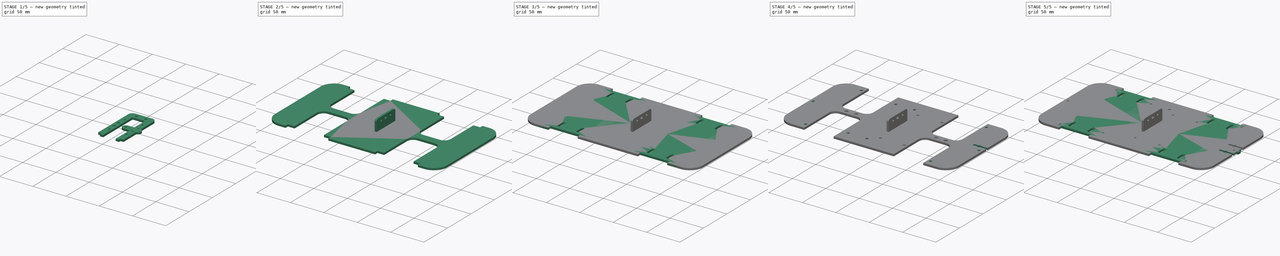
[diagram: build sequence overview — one tinted view per stage of 5, left to right]
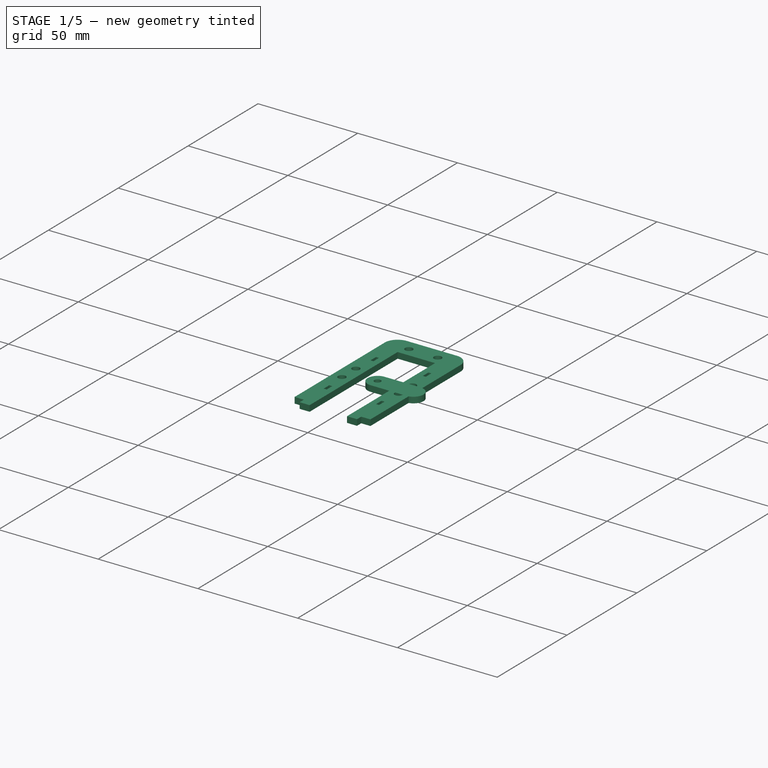
[diagram: stage 1 of 5 — iso view after this stage's code; geometry added in this stage tinted green]
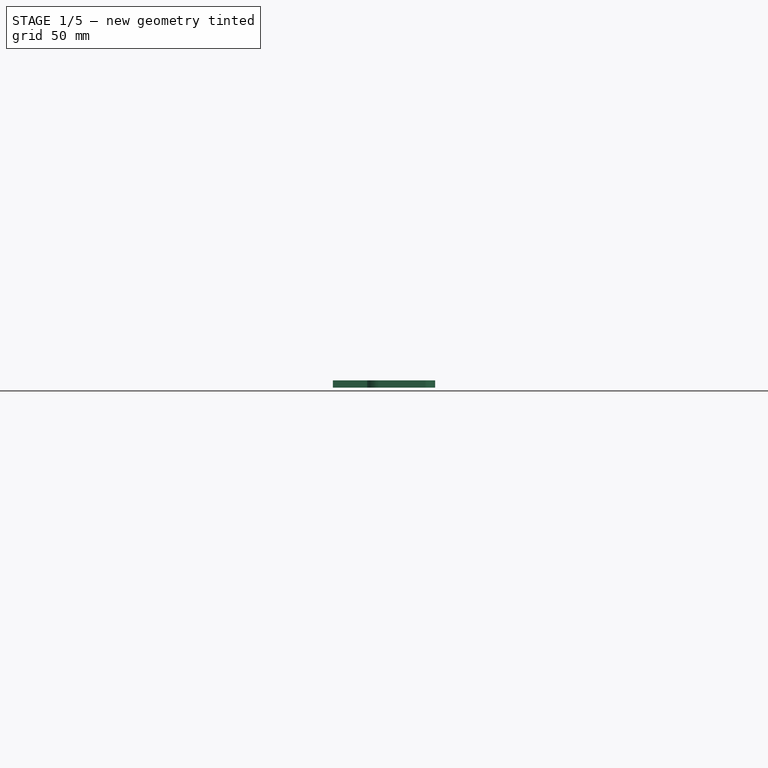
[diagram: stage 1 of 5 — front view after this stage's code; geometry added in this stage tinted green]
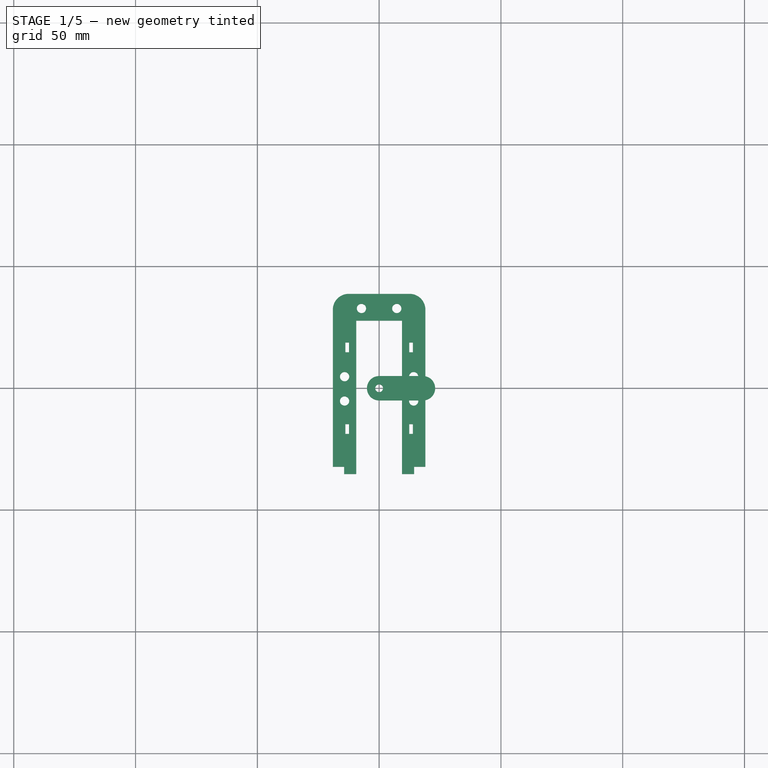
[diagram: stage 1 of 5 — top view after this stage's code; geometry added in this stage tinted green]
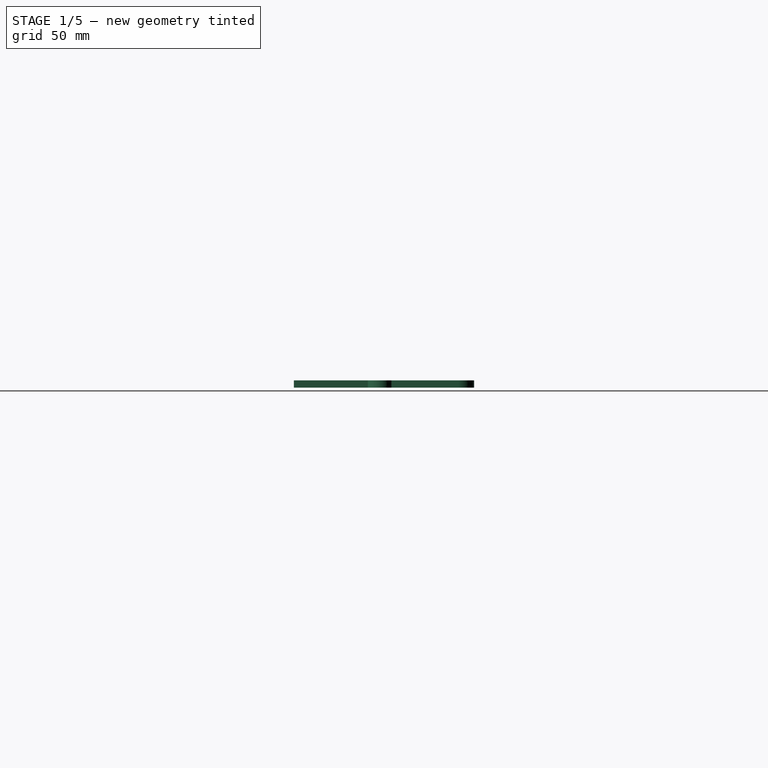
[diagram: stage 1 of 5 — right view after this stage's code; geometry added in this stage tinted green]
FCSTD DOCUMENT  (FreeCAD 0.18.4R)
Label: base
License: All rights reserved
LicenseURL: http://en.wikipedia.org/wiki/All_rights_reserved
objects: Sketcher::SketchObject×35, TechDraw::DrawViewPart×26, PartDesign::Pocket×23, PartDesign::Mirrored×16, PartDesign::Pad×11, PartDesign::Body×8, PartDesign::MultiTransform×5, PartDesign::ShapeBinder×4, TechDraw::DrawSVGTemplate×3, TechDraw::DrawPage×3, Spreadsheet::Sheet×1, PartDesign::Plane×1, PartDesign::Chamfer×1, PartDesign::FeatureBase×1
note: 139 computed .brp shape members not serialized (recipe doc carries the construction recipe); baked Part::Feature solids carry a one-line shape summary decoded from their .brp

FEATURE [Spreadsheet::Sheet] Spreadsheet  label="Values"
  cells = A1=Leaf width; B1(leaf_width)=38; A2=Leaf length; B2(leaf_length)=71; A3=Motor Length; B3(motor_length)=60; A4=Motor Width; B4(motor_width)=25; A6=Hinge pitch; B6(hinge_pitch)=14.5; A7=Hinge offset; B7(hinge_offset)=8; A9=M3 inset hole; B9(m3_inset_hole)=3.8
FEATURE [Sketcher::SketchObject] Sketch001
  MapMode = 5
  Support = -> [XY_Plane001]
  expr: Constraints[17] = Values.motor_length
  expr: Constraints[19] = Values.leaf_width
  expr: Constraints[16] = Values.motor_width * 3 / 4
  expr: Constraints[15] = Values.leaf_length
  sketch-geometry (10):
    g0: LineSegment StartX=-19 StartY=32.25 StartZ=0 EndX=-19 EndY=-32.25 EndZ=0
    g1: LineSegment StartX=-19 StartY=-32.25 StartZ=0 EndX=-9.375 EndY=-32.25 EndZ=0
    g2: LineSegment StartX=-9.375 StartY=-32.25 StartZ=0 EndX=-9.375 EndY=27.75 EndZ=0
    g3: LineSegment StartX=-9.375 StartY=27.75 StartZ=0 EndX=9.375 EndY=27.75 EndZ=0
    g4: LineSegment StartX=9.375 StartY=27.75 StartZ=0 EndX=9.375 EndY=-32.25 EndZ=0
    g5: LineSegment StartX=9.375 StartY=-32.25 StartZ=0 EndX=19 EndY=-32.25 EndZ=0
    g6: LineSegment StartX=19 StartY=-32.25 StartZ=0 EndX=19 EndY=32.25 EndZ=0
    g7: LineSegment StartX=-12.5 StartY=38.75 StartZ=0 EndX=12.5 EndY=38.75 EndZ=0
    g8: ArcOfCircle CenterX=-12.5 CenterY=32.25 CenterZ=0 NormalX=0 NormalY=0 NormalZ=1 AngleXU=0 Radius=6.5 StartAngle=1.5708 EndAngle=3.14159
    g9: ArcOfCircle CenterX=12.5 CenterY=32.25 CenterZ=0 NormalX=0 NormalY=0 NormalZ=1 AngleXU=0 Radius=6.5 StartAngle=-9e-16 EndAngle=1.5708
  constraints (24):
    c: Vertical(g0)
    c: Coincident(g0,g1)
    c: Coincident(g1,g2)
    c: Coincident(g2,g3)
    c: Horizontal(g3)
    c: Coincident(g3,g4)
    c: Coincident(g4,g5)
    c: Coincident(g5,g6)
    c: Vertical(g2)
    c: Vertical(g4)
    c: Horizontal(g5)
    c: Symmetric(g7,g7,g-2)
    c: Symmetric(g1,g4,g-2)
    c: Symmetric(g0,g5,g-2)
    c: DistanceX(g7,g7) = 25
    c: DistanceY(g5,g7) = 71
    c: DistanceX(g2,g3) = 18.75
    c: DistanceY(g4,g4) = 60
    c: Symmetric(g6,g5,g-1)
    c: DistanceX(g0,g5) = 38
    c: Tangent(g6,g9) = -1.5708
    c: Tangent(g7,g9) = 1.5708
    c: Tangent(g7,g8) = 1.5708
    c: Tangent(g0,g8) = -1.5708
FEATURE [PartDesign::Pad] Pad001
  Length = 3
  Length2 = 100
  Profile = -> Sketch001
  Refine = true
  Type = 0
FEATURE [PartDesign::Plane] DatumPlane  label="leaf end"
  Length = 43.5136
  MapMode = 5
  Placement = pos=(0,-32.25,0) rot=(1,0,0;1.5708rad)
  ResizeMode = 0
  Support = -> [Pad001]
  Width = 25.5136
FEATURE [Sketcher::SketchObject] Sketch002
  ExternalGeometry = -> [Pad001]
  MapMode = 5
  Placement = pos=(0,-32.25,0) rot=(1,0,0;1.5708rad)
  Support = -> [DatumPlane]
  sketch-geometry (8):
    g0: LineSegment StartX=-9.375 StartY=3 StartZ=0 EndX=-14.375 EndY=3 EndZ=0
    g1: LineSegment StartX=-14.375 StartY=3 StartZ=0 EndX=-14.375 EndY=0 EndZ=0
    g2: LineSegment StartX=-14.375 StartY=0 StartZ=0 EndX=-9.375 EndY=0 EndZ=0
    g3: LineSegment StartX=-9.375 StartY=0 StartZ=0 EndX=-9.375 EndY=3 EndZ=0
    g4: LineSegment StartX=9.375 StartY=3 StartZ=0 EndX=14.375 EndY=3 EndZ=0
    g5: LineSegment StartX=14.375 StartY=3 StartZ=0 EndX=14.375 EndY=0 EndZ=0
    g6: LineSegment StartX=14.375 StartY=0 StartZ=0 EndX=9.375 EndY=0 EndZ=0
    g7: LineSegment StartX=9.375 StartY=0 StartZ=0 EndX=9.375 EndY=3 EndZ=0
  constraints (22):
    c: Coincident(g0,g1)
    c: Coincident(g1,g2)
    c: Coincident(g2,g3)
    c: Coincident(g3,g0)
    c: Horizontal(g0)
    c: Horizontal(g2)
    c: Vertical(g1)
    c: Vertical(g3)
    c: Coincident(g0,g-6)
    c: PointOnObject(g1,g-5)
    c: Coincident(g4,g5)
    c: Coincident(g5,g6)
    c: Coincident(g6,g7)
    c: Coincident(g7,g4)
    c: Horizontal(g4)
    c: Horizontal(g6)
    c: Vertical(g5)
    c: Vertical(g7)
    c: PointOnObject(g5,g-9)
    c: Equal(g0,g4)
    c: DistanceX(g2,g2) = 5
    c: Coincident(g4,g-8)
FEATURE [PartDesign::Pad] Pad002  label="motor bracket prongs"
  BaseFeature = -> Pad001
  Length = 3
  Length2 = 100
  Profile = -> Sketch002
  Refine = true
  Type = 0
FEATURE [Sketcher::SketchObject] Sketch006
  ExternalGeometry = -> [Pad002]
  MapMode = 5
  Placement = pos=(0,0,3) rot=(0,0,1;0rad)
  Support = -> [Pad002]
  sketch-geometry (4):
    g0: LineSegment StartX=-13.875 StartY=18.75 StartZ=0 EndX=-12.375 EndY=18.75 EndZ=0
    g1: LineSegment StartX=-12.375 StartY=18.75 StartZ=0 EndX=-12.375 EndY=14.75 EndZ=0
    g2: LineSegment StartX=-12.375 StartY=14.75 StartZ=0 EndX=-13.875 EndY=14.75 EndZ=0
    g3: LineSegment StartX=-13.875 StartY=14.75 StartZ=0 EndX=-13.875 EndY=18.75 EndZ=0
  constraints (12):
    c: Coincident(g0,g1)
    c: Coincident(g1,g2)
    c: Coincident(g2,g3)
    c: Coincident(g3,g0)
    c: Horizontal(g0)
    c: Horizontal(g2)
    c: Vertical(g1)
    c: Vertical(g3)
    c: DistanceY(g1,g1) = 4
    c: DistanceX(g2,g2) = 1.5
    c: DistanceX(g0,g-3) = 3
    c: DistanceY(g0,g-3) = 9
FEATURE [PartDesign::Pocket] Pocket002
  BaseFeature = -> Pad002
  Length = 5
  Length2 = 100
  Profile = -> Sketch006
  Refine = true
  Type = 1
FEATURE [PartDesign::Mirrored] Mirrored004
  MirrorPlane = -> Sketch006 [V_Axis]
  Refine = true
FEATURE [PartDesign::Mirrored] Mirrored005
  MirrorPlane = -> Sketch006 [H_Axis]
  Refine = true
FEATURE [PartDesign::MultiTransform] MultiTransform002  label="Cable tie holes"
  BaseFeature = -> Pocket002
  Originals = -> [Pocket002]
  Refine = true
  Transformations = -> [Mirrored004,Mirrored005]
FEATURE [Sketcher::SketchObject] Sketch007
  ExternalGeometry = -> [Pad003]
  MapMode = 5
  Placement = pos=(0,0,3) rot=(0,0,1;0rad)
  Support = -> [Pad003]
  constraints (1):
    c: Distance(g-3,g-1) = 23.7608
FEATURE [Sketcher::SketchObject] Sketch008
  ExternalGeometry = -> [MultiTransform002]
  MapMode = 5
  Placement = pos=(0,0,3) rot=(0,0,1;0rad)
  Support = -> [MultiTransform002]
  expr: Constraints[0] = Values.m3_inset_hole
  expr: Constraints[3] = Values.hinge_pitch
  expr: Constraints[2] = Values.hinge_offset - 2
  sketch-geometry (2):
    g0: Circle CenterX=-7.25 CenterY=32.75 CenterZ=0 NormalX=0 NormalY=0 NormalZ=1 AngleXU=0 Radius=1.9
    g1: Circle CenterX=7.25 CenterY=32.75 CenterZ=0 NormalX=0 NormalY=0 NormalZ=1 AngleXU=0 Radius=1.9
  constraints (5):
    c: Diameter(g0) = 3.8
    c: Equal(g0,g1)
    c: DistanceY(g0,g-3) = 6
    c: DistanceX(g0,g1) = 14.5
    c: Symmetric(g1,g0,g-2)
FEATURE [PartDesign::Pocket] Pocket003  label="Hinge holes(leaf)"
  BaseFeature = -> MultiTransform002
  Length = 5
  Length2 = 100
  Profile = -> Sketch008
  Refine = true
  Type = 1
FEATURE [PartDesign::Body] Body002  label="MotorBracket"
  Group = -> [Sketch003,Pad003,Sketch007,Sketch009,Pocket004,Chamfer]
  Origin = -> Origin002
  Placement = pos=(-67,-82,-8) rot=(1,0,0;1.5708rad)
  Tip = -> Chamfer
FEATURE [TechDraw::DrawViewPart] View002
  CoarseView = false
  Direction = (0,0,1)
  Focus = 100
  HardHidden = false
  IsoCount = 0
  IsoHidden = false
  IsoVisible = false
  LockPosition = false
  Perspective = false
  Rotation = 0
  ScaleType = 0
  SeamHidden = false
  SeamVisible = false
  SmoothHidden = false
  SmoothVisible = false
  Source = -> [Body002]
  X = 122.667
  Y = 32.2364
FEATURE [Sketcher::SketchObject] Sketch013
  ExternalGeometry = -> [Pocket003]
  MapMode = 5
  Placement = pos=(0,0,3) rot=(0,0,1;0rad)
  Support = -> [Pocket003]
  expr: Constraints[2] = Values.m3_inset_hole
  sketch-geometry (2):
    g0: LineSegment [constr] StartX=-19 StartY=-5.25 StartZ=0 EndX=-9.375 EndY=-5.25 EndZ=0
    g1: Circle CenterX=-14.1875 CenterY=-5.25 CenterZ=0 NormalX=0 NormalY=0 NormalZ=1 AngleXU=0 Radius=1.9
  constraints (7):
    c: PointOnObject(g0,g-3)
    c: Horizontal(g0)
    c: Diameter(g1) = 3.8
    c: Symmetric(g0,g0,g1)
    c: PointOnObject(g0,g-4)
    c: DistanceX(g1,g-1) = 14.1875  'suspension_offset'
    c: DistanceY(g1,g-5) = 44
FEATURE [PartDesign::Pocket] Pocket007
  BaseFeature = -> Pocket003
  Length = 5
  Length2 = 100
  Profile = -> Sketch013
  Refine = true
  Type = 1
FEATURE [PartDesign::Mirrored] Mirrored008  label="Suspension holes"
  BaseFeature = -> Pocket007
  MirrorPlane = -> Sketch013 [V_Axis]
  Originals = -> [Pocket007]
  Refine = true
FEATURE [PartDesign::Body] Body  label="Lower plane"
  Group = -> [Sketch,Pad,Sketch004,Pocket,MultiTransform,Mirrored,Sketch005,Pocket001,Mirrored006,Sketch014,Pocket008,ShapeBinder001,Sketch025,Pocket016,ShapeBinder003,Sketch031,Pocket020,Mirrored018,Sketch032,Pad007,Sketch037,Pocket024,Mirrored020]
  Origin = -> Origin
  Tip = -> Mirrored020
FEATURE [TechDraw::DrawViewPart] View
  CoarseView = false
  Direction = (0,0,1)
  Focus = 100
  HardHidden = false
  IsoCount = 0
  IsoHidden = false
  IsoVisible = false
  LockPosition = false
  Perspective = false
  Rotation = 0
  ScaleType = 0
  SeamHidden = false
  SeamVisible = false
  SmoothHidden = false
  SmoothVisible = false
  Source = -> [Body]
  X = 147.22
  Y = 117.378
FEATURE [TechDraw::DrawViewPart] View006
  CoarseView = false
  Direction = (1,0,0)
  Focus = 100
  HardHidden = false
  IsoCount = 0
  IsoHidden = false
  IsoVisible = false
  LockPosition = false
  Perspective = false
  Rotation = 0
  ScaleType = 0
  SeamHidden = false
  SeamVisible = false
  SmoothHidden = false
  SmoothVisible = false
  Source = -> [Body006]
  X = 25.1463
  Y = 55.9146
FEATURE [TechDraw::DrawPage] Page001  label="Upper drawing"
  KeepUpdated = true
  ProjectionType = 0
  Template = -> Template001
  Views = -> [View003,View005,View006]
FEATURE [Sketcher::SketchObject] Sketch038
  ExternalGeometry = -> [Mirrored008]
  MapMode = 5
  Placement = pos=(0,0,3) rot=(0,0,1;0rad)
  Support = -> [Mirrored008]
  expr: Constraints[2] = Values.m3_inset_hole
  sketch-geometry (1):
    g0: Circle CenterX=-14.1875 CenterY=4.75 CenterZ=0 NormalX=0 NormalY=0 NormalZ=1 AngleXU=0 Radius=1.9
  constraints (3):
    c: Vertical(g0,g-3)
    c: DistanceY(g-3,g0) = 10
    c: Diameter(g0) = 3.8
FEATURE [PartDesign::Pocket] Pocket025
  BaseFeature = -> Mirrored008
  Length = 5
  Length2 = 100
  Profile = -> Sketch038
  Refine = true
  Type = 1
FEATURE [PartDesign::Mirrored] Mirrored021
  BaseFeature = -> Pocket025
  MirrorPlane = -> Sketch038 [V_Axis]
  Originals = -> [Pocket025]
  Refine = true
FEATURE [PartDesign::Body] Body007  label="Lug1"
  Group = -> [Sketch039,Pad009]
  Origin = -> Origin007
  Placement = pos=(-75,-106,0) rot=(0,0,1;0rad)
  Tip = -> Pad009
FEATURE [Sketcher::SketchObject] Sketch040
  MapMode = 5
  Support = -> [XY_Plane008]
  sketch-geometry (7):
    g0: ArcOfCircle CenterX=0 CenterY=0 CenterZ=0 NormalX=0 NormalY=0 NormalZ=1 AngleXU=0 Radius=5 StartAngle=1.5708 EndAngle=4.71239
    g1: ArcOfCircle CenterX=18 CenterY=-3e-16 CenterZ=0 NormalX=0 NormalY=0 NormalZ=1 AngleXU=0 Radius=5 StartAngle=4.71239 EndAngle=7.85398
    g2: LineSegment StartX=0 StartY=-5 StartZ=0 EndX=18 EndY=-5 EndZ=0
    g3: LineSegment StartX=-8e-16 StartY=5 StartZ=0 EndX=18 EndY=5 EndZ=0
    g4: GeomPoint X=-5 Y=0 Z=0
    g5: GeomPoint X=23 Y=0 Z=0
    g6: Circle CenterX=0 CenterY=0 CenterZ=0 NormalX=0 NormalY=0 NormalZ=1 AngleXU=0 Radius=1.6
  constraints (15):
    c: Tangent(g0,g3) = 1.5708
    c: Tangent(g0,g2) = -1.5708
    c: Tangent(g2,g1) = -1.5708
    c: Tangent(g3,g1) = 1.5708
    c: Horizontal(g2)
    c: Equal(g0,g1)
    c: Coincident(g0,g-1)
    c: DistanceY(g0,g0) = 10
    c: PointOnObject(g4,g0)
    c: PointOnObject(g5,g1)
    c: PointOnObject(g5,g-1)
    c: PointOnObject(g4,g-1)
    c: DistanceX(g4,g5) = 28
    c: Coincident(g6,g0)
    c: Diameter(g6) = 3.2
FEATURE [PartDesign::Pad] Pad010
  Length = 3
  Length2 = 100
  Profile = -> Sketch040
  Refine = true
  Type = 0
FEATURE [PartDesign::Body] Body008  label="Lug002"
  Group = -> [Sketch040,Pad010]
  Origin = -> Origin008
  Placement = pos=(-47,-106,0) rot=(0,0,1;0rad)
  Tip = -> Pad010
FEATURE [TechDraw::DrawSVGTemplate] Template002
  Height = 210
  Orientation = 1
  Width = 297
FEATURE [TechDraw::DrawViewPart] View007
  CoarseView = false
  Direction = (0,0,1)
  Focus = 100
  HardHidden = false
  IsoCount = 0
  IsoHidden = false
  IsoVisible = false
  LockPosition = false
  Perspective = false
  Rotation = 0
  ScaleType = 0
  SeamHidden = false
  SeamVisible = false
  SmoothHidden = false
  SmoothVisible = false
  Source = -> [Body007]
  X = 18.7439
  Y = 195.488
FEATURE [TechDraw::DrawViewPart] View008
  CoarseView = false
  Direction = (0,0,1)
  Focus = 100
  HardHidden = false
  IsoCount = 0
  IsoHidden = false
  IsoVisible = false
  LockPosition = false
  Perspective = false
  Rotation = 0
  ScaleType = 0
  SeamHidden = false
  SeamVisible = false
  SmoothHidden = false
  SmoothVisible = false
  Source = -> [Body007]
  X = 20.878
  Y = 55.9146
FEATURE [TechDraw::DrawViewPart] View009
  CoarseView = false
  Direction = (0,0,1)
  Focus = 100
  HardHidden = false
  IsoCount = 0
  IsoHidden = false
  IsoVisible = false
  LockPosition = false
  Perspective = false
  Rotation = 0
  ScaleType = 0
  SeamHidden = false
  SeamVisible = false
  SmoothHidden = false
  SmoothVisible = false
  Source = -> [Body007]
  X = 20.878
  Y = 67.0122
FEATURE [TechDraw::DrawViewPart] View010
  CoarseView = false
  Direction = (0,0,1)
  Focus = 100
  HardHidden = false
  IsoCount = 0
  IsoHidden = false
  IsoVisible = false
  LockPosition = false
  Perspective = false
  Rotation = 0
  ScaleType = 0
  SeamHidden = false
  SeamVisible = false
  SmoothHidden = false
  SmoothVisible = false
  Source = -> [Body007]
  X = 21.7317
  Y = 79.3902
FEATURE [TechDraw::DrawViewPart] View011
  CoarseView = false
  Direction = (0,0,1)
  Focus = 100
  HardHidden = false
  IsoCount = 0
  IsoHidden = false
  IsoVisible = false
  LockPosition = false
  Perspective = false
  Rotation = 0
  ScaleType = 0
  SeamHidden = false
  SeamVisible = false
  SmoothHidden = false
  SmoothVisible = false
  Source = -> [Body007]
  X = 21.7317
  Y = 90.4878
FEATURE [TechDraw::DrawViewPart] View012
  CoarseView = false
  Direction = (0,0,1)
  Focus = 100
  HardHidden = false
  IsoCount = 0
  IsoHidden = false
  IsoVisible = false
  LockPosition = false
  Perspective = false
  Rotation = 0
  ScaleType = 0
  SeamHidden = false
  SeamVisible = false
  SmoothHidden = false
  SmoothVisible = false
  Source = -> [Body007]
  X = 20.4512
  Y = 101.585
FEATURE [TechDraw::DrawViewPart] View013
  CoarseView = false
  Direction = (0,0,1)
  Focus = 100
  HardHidden = false
  IsoCount = 0
  IsoHidden = false
  IsoVisible = false
  LockPosition = false
  Perspective = false
  Rotation = 0
  ScaleType = 0
  SeamHidden = false
  SeamVisible = false
  SmoothHidden = false
  SmoothVisible = false
  Source = -> [Body007]
  X = 20.0244
  Y = 113.11
FEATURE [TechDraw::DrawViewPart] View014
  CoarseView = false
  Direction = (0,0,1)
  Focus = 100
  HardHidden = false
  IsoCount = 0
  IsoHidden = false
  IsoVisible = false
  LockPosition = false
  Perspective = false
  Rotation = 0
  ScaleType = 0
  SeamHidden = false
  SeamVisible = false
  SmoothHidden = false
  SmoothVisible = false
  Source = -> [Body007]
  X = 19.5976
  Y = 125.488
FEATURE [TechDraw::DrawViewPart] View015
  CoarseView = false
  Direction = (0,0,1)
  Focus = 100
  HardHidden = false
  IsoCount = 0
  IsoHidden = false
  IsoVisible = false
  LockPosition = false
  Perspective = false
  Rotation = 0
  ScaleType = 0
  SeamHidden = false
  SeamVisible = false
  SmoothHidden = false
  SmoothVisible = false
  Source = -> [Body007]
  X = 20.0244
  Y = 137.439
FEATURE [TechDraw::DrawViewPart] View016
  CoarseView = false
  Direction = (0,0,1)
  Focus = 100
  HardHidden = false
  IsoCount = 0
  IsoHidden = false
  IsoVisible = false
  LockPosition = false
  Perspective = false
  Rotation = 0
  ScaleType = 0
  SeamHidden = false
  SeamVisible = false
  SmoothHidden = false
  SmoothVisible = false
  Source = -> [Body007]
  X = 20.0244
  Y = 149.39
FEATURE [TechDraw::DrawViewPart] View017
  CoarseView = false
  Direction = (0,0,1)
  Focus = 100
  HardHidden = false
  IsoCount = 0
  IsoHidden = false
  IsoVisible = false
  LockPosition = false
  Perspective = false
  Rotation = 0
  ScaleType = 0
  SeamHidden = false
  SeamVisible = false
  SmoothHidden = false
  SmoothVisible = false
  Source = -> [Body007]
  X = 19.5976
  Y = 161.341
FEATURE [TechDraw::DrawViewPart] View018
  CoarseView = false
  Direction = (0,0,1)
  Focus = 100
  HardHidden = false
  IsoCount = 0
  IsoHidden = false
  IsoVisible = false
  LockPosition = false
  Perspective = false
  Rotation = 0
  ScaleType = 0
  SeamHidden = false
  SeamVisible = false
  SmoothHidden = false
  SmoothVisible = false
  Source = -> [Body007]
  X = 19.1707
  Y = 172.866
FEATURE [TechDraw::DrawViewPart] View019
  CoarseView = false
  Direction = (0,0,1)
  Focus = 100
  HardHidden = false
  IsoCount = 0
  IsoHidden = false
  IsoVisible = false
  LockPosition = false
  Perspective = false
  Rotation = 0
  ScaleType = 0
  SeamHidden = false
  SeamVisible = false
  SmoothHidden = false
  SmoothVisible = false
  Source = -> [Body007]
  X = 18.7439
  Y = 184.39
FEATURE [TechDraw::DrawViewPart] View020
  CoarseView = false
  Direction = (0,0,1)
  Focus = 100
  HardHidden = false
  IsoCount = 0
  IsoHidden = false
  IsoVisible = false
  LockPosition = false
  Perspective = false
  Rotation = 0
  ScaleType = 0
  SeamHidden = false
  SeamVisible = false
  SmoothHidden = false
  SmoothVisible = false
  Source = -> [Body007]
  X = 20.878
  Y = 44.3902
FEATURE [TechDraw::DrawViewPart] View021
  CoarseView = false
  Direction = (0,0,1)
  Focus = 100
  HardHidden = false
  IsoCount = 0
  IsoHidden = false
  IsoVisible = false
  LockPosition = false
  Perspective = false
  Rotation = 0
  ScaleType = 0
  SeamHidden = false
  SeamVisible = false
  SmoothHidden = false
  SmoothVisible = false
  Source = -> [Body008]
  X = 46.4878
  Y = 183.963
FEATURE [TechDraw::DrawViewPart] View022
  CoarseView = false
  Direction = (0,0,1)
  Focus = 100
  HardHidden = false
  IsoCount = 0
  IsoHidden = false
  IsoVisible = false
  LockPosition = false
  Perspective = false
  Rotation = 0
  ScaleType = 0
  SeamHidden = false
  SeamVisible = false
  SmoothHidden = false
  SmoothVisible = false
  Source = -> [Body008]
  X = 46.4878
  Y = 195.915
FEATURE [TechDraw::DrawViewPart] View023
  CoarseView = false
  Direction = (0,0,1)
  Focus = 100
  HardHidden = false
  IsoCount = 0
  IsoHidden = false
  IsoVisible = false
  LockPosition = false
  Perspective = false
  Rotation = 0
  ScaleType = 0
  SeamHidden = false
  SeamVisible = false
  SmoothHidden = false
  SmoothVisible = false
  Source = -> [Body001]
  X = 148.5
  Y = 105
FEATURE [TechDraw::DrawViewPart] View024
  CoarseView = false
  Direction = (0,0,-1)
  Focus = 100
  HardHidden = false
  IsoCount = 0
  IsoHidden = false
  IsoVisible = false
  LockPosition = false
  Perspective = false
  Rotation = 180
  ScaleType = 0
  SeamHidden = false
  SeamVisible = false
  SmoothHidden = false
  SmoothVisible = false
  Source = -> [Body001]
  X = 194.598
  Y = 105.854
FEATURE [TechDraw::DrawViewPart] View025
  CoarseView = false
  Direction = (0,0,1)
  Focus = 100
  HardHidden = false
  IsoCount = 0
  IsoHidden = false
  IsoVisible = false
  LockPosition = false
  Perspective = false
  Rotation = 0
  ScaleType = 0
  SeamHidden = false
  SeamVisible = false
  SmoothHidden = false
  SmoothVisible = false
  Source = -> [Body001]
  X = 96
  Y = 139.573
FEATURE [TechDraw::DrawViewPart] View026
  CoarseView = false
  Direction = (0,0,1)
  Focus = 100
  HardHidden = false
  IsoCount = 0
  IsoHidden = false
  IsoVisible = false
  LockPosition = false
  Perspective = false
  Rotation = 0
  ScaleType = 0
  SeamHidden = false
  SeamVisible = false
  SmoothHidden = false
  SmoothVisible = false
  Source = -> [Body001]
  X = 53.3171
  Y = 138.72
FEATURE [TechDraw::DrawPage] Page002  label="wheel bits"
  KeepUpdated = true
  ProjectionType = 0
  Template = -> Template002
  Views = -> [View007,View008,View009,View010,View011,View012,View013,View014,View015,View016,View017,View018,View019,View020,View021,View022,View023,View024,View025,View026]
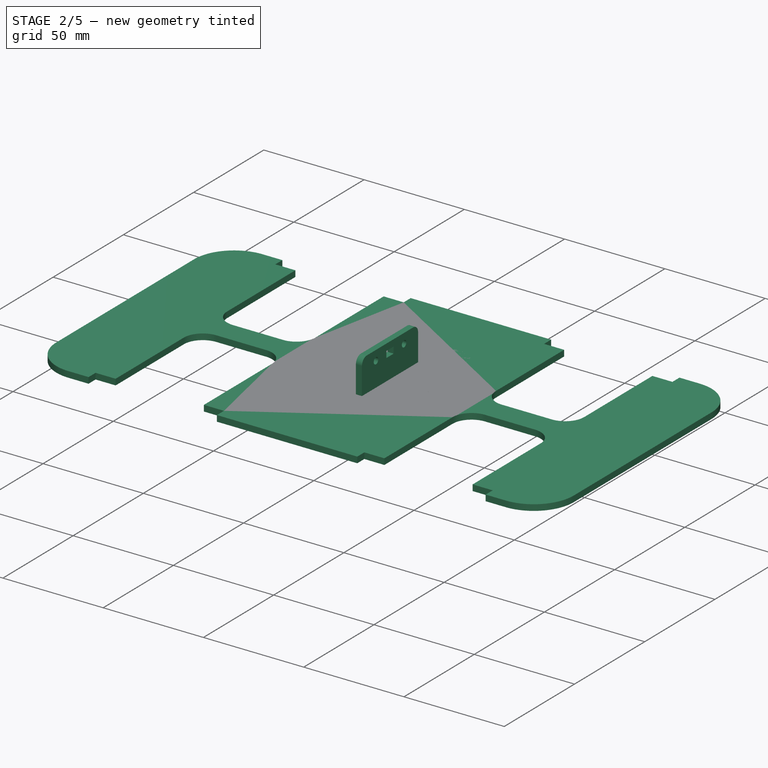
[diagram: stage 2 of 5 — iso view after this stage's code; geometry added in this stage tinted green]
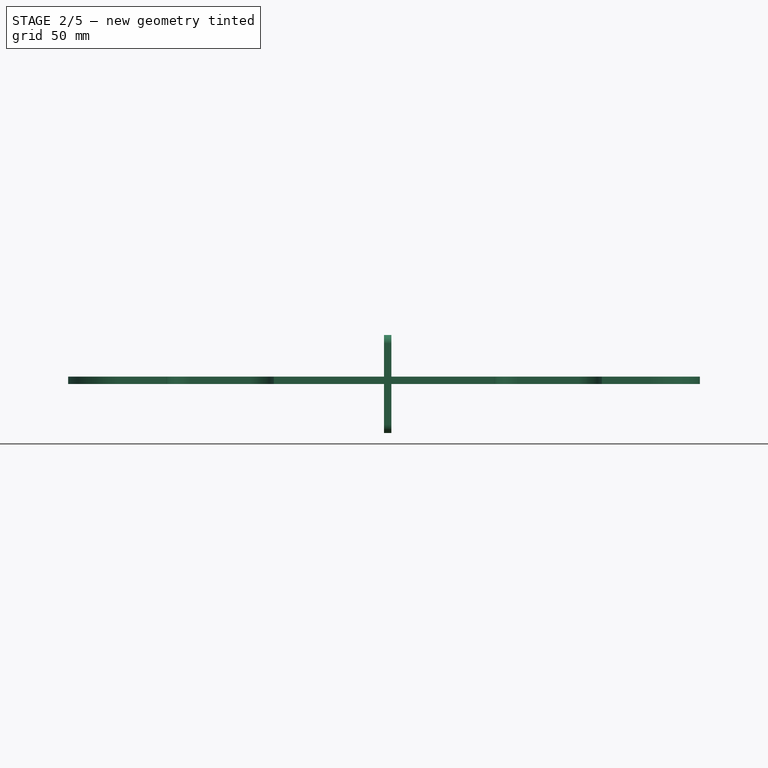
[diagram: stage 2 of 5 — front view after this stage's code; geometry added in this stage tinted green]
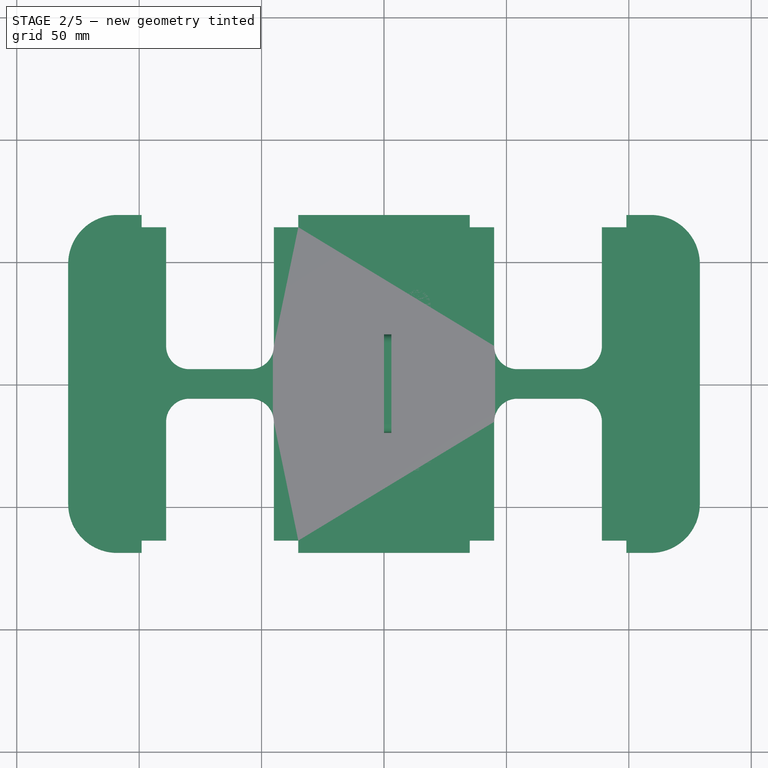
[diagram: stage 2 of 5 — top view after this stage's code; geometry added in this stage tinted green]
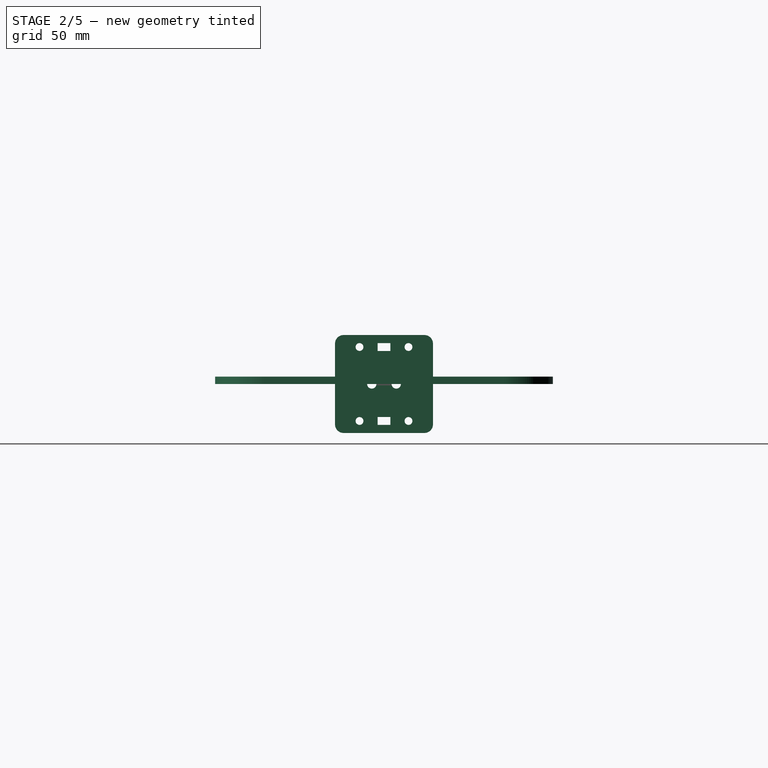
[diagram: stage 2 of 5 — right view after this stage's code; geometry added in this stage tinted green]
FEATURE [Sketcher::SketchObject] Sketch
  MapMode = 5
  Support = -> [XY_Plane]
  expr: Constraints[14] = Values.leaf_length - 8
  expr: Constraints[110] = Values.leaf_width + 6
  expr: Constraints[12] = Values.leaf_width + 6
  sketch-geometry (36):
    g0: LineSegment StartX=0 StartY=-69 StartZ=0 EndX=-45 EndY=-69 EndZ=0
    g1: LineSegment StartX=-45 StartY=-69 StartZ=0 EndX=-45 EndY=-15.5 EndZ=0
    g2: LineSegment StartX=-129 StartY=0 StartZ=0 EndX=-129 EndY=-49 EndZ=0
    g3: LineSegment StartX=-109 StartY=-69 StartZ=0 EndX=-89 EndY=-69 EndZ=0
    g4: LineSegment StartX=-89 StartY=-69 StartZ=0 EndX=-89 EndY=-15.5 EndZ=0
    g5: LineSegment StartX=-79.5 StartY=-6 StartZ=0 EndX=-54.5 EndY=-6 EndZ=0
    g6: ArcOfCircle CenterX=-109 CenterY=-49 CenterZ=0 NormalX=0 NormalY=0 NormalZ=1 AngleXU=0 Radius=20 StartAngle=3.14159 EndAngle=4.71239
    g7: ArcOfCircle CenterX=-79.5 CenterY=-15.5 CenterZ=0 NormalX=0 NormalY=0 NormalZ=1 AngleXU=0 Radius=9.5 StartAngle=1.5708 EndAngle=3.14159
    g8: ArcOfCircle CenterX=-54.5 CenterY=-15.5 CenterZ=0 NormalX=0 NormalY=0 NormalZ=1 AngleXU=0 Radius=9.5 StartAngle=2.29158e-08 EndAngle=1.5708
    g9: LineSegment StartX=0 StartY=-69 StartZ=0 EndX=45 EndY=-69 EndZ=0
    g10: LineSegment StartX=45 StartY=-69 StartZ=0 EndX=45 EndY=-15.5 EndZ=0
    g11: LineSegment StartX=129 StartY=0 StartZ=0 EndX=129 EndY=-49 EndZ=0
    g12: LineSegment StartX=109 StartY=-69 StartZ=0 EndX=89 EndY=-69 EndZ=0
    g13: LineSegment StartX=89 StartY=-69 StartZ=0 EndX=89 EndY=-15.5 EndZ=0
    g14: LineSegment StartX=79.5 StartY=-6 StartZ=0 EndX=54.5 EndY=-6 EndZ=0
    g15: ArcOfCircle CenterX=109 CenterY=-49 CenterZ=0 NormalX=0 NormalY=0 NormalZ=1 AngleXU=0 Radius=20 StartAngle=4.71239 EndAngle=6.28319
    g16: ArcOfCircle CenterX=79.5 CenterY=-15.5 CenterZ=0 NormalX=0 NormalY=0 NormalZ=1 AngleXU=0 Radius=9.5 StartAngle=3.93291e-08 EndAngle=1.5708
    g17: ArcOfCircle CenterX=54.5 CenterY=-15.5 CenterZ=0 NormalX=0 NormalY=0 NormalZ=1 AngleXU=0 Radius=9.5 StartAngle=1.5708 EndAngle=3.14159
    g18: LineSegment StartX=3.2e-15 StartY=69 StartZ=0 EndX=-45 EndY=69 EndZ=0
    g19: LineSegment StartX=-45 StartY=69 StartZ=0 EndX=-45 EndY=15.5 EndZ=0
    g20: LineSegment StartX=-129 StartY=0 StartZ=0 EndX=-129 EndY=49 EndZ=0
    g21: LineSegment StartX=-109 StartY=69 StartZ=0 EndX=-89 EndY=69 EndZ=0
    g22: LineSegment StartX=-89 StartY=69 StartZ=0 EndX=-89 EndY=15.5 EndZ=0
    g23: LineSegment StartX=-79.5 StartY=6 StartZ=0 EndX=-54.5 EndY=6 EndZ=0
    g24: ArcOfCircle CenterX=-109 CenterY=49 CenterZ=0 NormalX=0 NormalY=0 NormalZ=1 AngleXU=0 Radius=20 StartAngle=1.5708 EndAngle=3.14159
    g25: ArcOfCircle CenterX=-79.5 CenterY=15.5 CenterZ=0 NormalX=0 NormalY=0 NormalZ=1 AngleXU=0 Radius=9.5 StartAngle=3.14159 EndAngle=4.71239
    g26: ArcOfCircle CenterX=-54.5 CenterY=15.5 CenterZ=0 NormalX=0 NormalY=0 NormalZ=1 AngleXU=0 Radius=9.5 StartAngle=4.71239 EndAngle=6.28319
    g27: LineSegment StartX=3.2e-15 StartY=69 StartZ=0 EndX=45 EndY=69 EndZ=0
    g28: LineSegment StartX=45 StartY=69 StartZ=0 EndX=45 EndY=15.5 EndZ=0
    g29: LineSegment StartX=129 StartY=0 StartZ=0 EndX=129 EndY=49 EndZ=0
    g30: LineSegment StartX=109 StartY=69 StartZ=0 EndX=89 EndY=69 EndZ=0
    g31: LineSegment StartX=89 StartY=69 StartZ=0 EndX=89 EndY=15.5 EndZ=0
    g32: LineSegment StartX=79.5 StartY=6 StartZ=0 EndX=54.5 EndY=6 EndZ=0
    g33: ArcOfCircle CenterX=109 CenterY=49 CenterZ=0 NormalX=0 NormalY=0 NormalZ=1 AngleXU=0 Radius=20 StartAngle=6.28318 EndAngle=7.85398
    g34: ArcOfCircle CenterX=79.5 CenterY=15.5 CenterZ=0 NormalX=0 NormalY=0 NormalZ=1 AngleXU=0 Radius=9.5 StartAngle=4.71239 EndAngle=6.28319
    g35: ArcOfCircle CenterX=54.5 CenterY=15.5 CenterZ=0 NormalX=0 NormalY=0 NormalZ=1 AngleXU=0 Radius=9.5 StartAngle=3.14159 EndAngle=4.71239
  constraints (117):
    c: PointOnObject(g0,g-2)
    c: Horizontal(g0)
    c: Coincident(g1,g0)
    c: Vertical(g1)
    c: PointOnObject(g2,g-1)
    c: Vertical(g2)
    c: Horizontal(g3)
    c: Vertical(g4)
    c: Horizontal(g5)
    c: Coincident(g6,g3)
    c: Coincident(g6,g2)
    c: Coincident(g7,g4)
    c: DistanceX(g3,g0) = 44
    c: Coincident(g4,g3)
    c: DistanceY(g0,g5) = 63
    c: Radius(g6) = 20
    c: Tangent(g6,g2)
    c: Tangent(g4,g7)
    c: Horizontal(g0,g3)
    c: Tangent(g7,g5) = 1.5708
    c: Coincident(g8,g5)
    c: Coincident(g8,g1)
    c: Tangent(g1,g8)
    c: Tangent(g8,g5)
    c: DistanceX(g5,g5) = 25
    c: Tangent(g3,g6)
    c: Horizontal(g9)
    c: Coincident(g10,g9)
    c: Vertical(g10)
    c: Vertical(g11)
    c: Horizontal(g12)
    c: Vertical(g13)
    c: Horizontal(g14)
    c: Coincident(g15,g12)
    c: Coincident(g15,g11)
    c: Coincident(g16,g13)
    c: Coincident(g13,g12)
    c: Radius(g15) = 20
    c: Tangent(g15,g11)
    c: Tangent(g13,g16)
    c: Tangent(g16,g14) = -1.5708
    c: Coincident(g17,g14)
    c: Coincident(g17,g10)
    c: Tangent(g10,g17)
    c: Tangent(g17,g14)
    c: Tangent(g12,g15)
    c: Horizontal(g18)
    c: Coincident(g19,g18)
    c: Vertical(g19)
    c: Vertical(g20)
    c: Horizontal(g21)
    c: Vertical(g22)
    c: Horizontal(g23)
    c: Coincident(g24,g21)
    c: Coincident(g24,g20)
    c: Coincident(g25,g22)
    c: Coincident(g22,g21)
    c: Radius(g24) = 20
    c: Tangent(g24,g20)
    c: Tangent(g22,g25)
    c: Tangent(g25,g23) = -1.5708
    c: Coincident(g26,g23)
    c: Coincident(g26,g19)
    c: Tangent(g19,g26)
    c: Tangent(g26,g23)
    c: Tangent(g21,g24)
    c: Horizontal(g27)
    c: Coincident(g28,g27)
    c: Vertical(g28)
    c: Vertical(g29)
    c: Horizontal(g30)
    c: Vertical(g31)
    c: Horizontal(g32)
    c: Coincident(g33,g30)
    c: Coincident(g33,g29)
    c: Coincident(g34,g31)
    c: Coincident(g31,g30)
    c: Radius(g33) = 20
    c: Tangent(g33,g29)
    c: Tangent(g31,g34)
    c: Tangent(g34,g32) = 1.5708
    c: Coincident(g35,g32)
    c: Coincident(g35,g28)
    c: Tangent(g28,g35)
    c: Tangent(g35,g32)
    c: Tangent(g30,g33)
    c: Coincident(g2,g20)
    c: Coincident(g0,g9)
    c: Coincident(g11,g29)
    c: Coincident(g18,g27)
    c: Vertical(g0,g18)
    c: Vertical(g21,g3)
    c: Vertical(g27,g9)
    c: Vertical(g12,g30)
    c: Equal(g9,g0)
    c: Equal(g18,g27)
    c: Equal(g20,g2)
    c: Horizontal(g20,g29)
    c: Horizontal(g11,g2)
    c: Equal(g5,g23)
    c: Equal(g23,g32)
    c: Equal(g32,g14)
    c: Equal(g4,g1)
    c: Equal(g1,g10)
    c: Equal(g10,g13)
    c: Equal(g13,g31)
    c: Equal(g31,g28)
    c: Equal(g28,g19)
    c: Equal(g19,g22)
    c: Horizontal(g21,g18)
    c: DistanceX(g9,g12) = 44
    c: Symmetric(g2,g11,g-2)
    c: DistanceY(g0,g18) = 138  'body_width'
    c: DistanceX(g20,g21) = 40
    c: DistanceX(g0,g9) = 90
    c: DistanceX(g2,g11) = 258
    c: DistanceY(g5,g23) = 12  'spar_width'
FEATURE [PartDesign::Pad] Pad
  Length = 3
  Length2 = 100
  Profile = -> Sketch
  Refine = true
  Type = 0
FEATURE [PartDesign::FeatureBase] Clone
  BaseFeature = -> Pad
FEATURE [PartDesign::ShapeBinder] ShapeBinder
  TraceSupport = false
FEATURE [Sketcher::SketchObject] Sketch017
  MapMode = 5
  Placement = pos=(0,0,0) rot=(1,0,0;3.14159rad)
  sketch-geometry (8):
    g0: LineSegment StartX=-99 StartY=69 StartZ=0 EndX=-89 EndY=69 EndZ=0
    g1: LineSegment StartX=-89 StartY=69 StartZ=0 EndX=-89 EndY=64 EndZ=0
    g2: LineSegment StartX=-89 StartY=64 StartZ=0 EndX=-99 EndY=64 EndZ=0
    g3: LineSegment StartX=-99 StartY=64 StartZ=0 EndX=-99 EndY=69 EndZ=0
    g4: LineSegment StartX=-45 StartY=69 StartZ=0 EndX=-35 EndY=69 EndZ=0
    g5: LineSegment StartX=-35 StartY=69 StartZ=0 EndX=-35 EndY=64 EndZ=0
    g6: LineSegment StartX=-35 StartY=64 StartZ=0 EndX=-45 EndY=64 EndZ=0
    g7: LineSegment StartX=-45 StartY=64 StartZ=0 EndX=-45 EndY=69 EndZ=0
  constraints (20):
    c: Coincident(g0,g1)
    c: Coincident(g1,g2)
    c: Coincident(g2,g3)
    c: Coincident(g3,g0)
    c: Horizontal(g0)
    c: Horizontal(g2)
    c: Vertical(g1)
    c: Vertical(g3)
    c: DistanceX(g0,g0) = 10
    c: DistanceY(g3,g3) = 5
    c: Coincident(g4,g5)
    c: Coincident(g5,g6)
    c: Coincident(g6,g7)
    c: Coincident(g7,g4)
    c: Horizontal(g4)
    c: Horizontal(g6)
    c: Vertical(g5)
    c: Vertical(g7)
    c: Equal(g7,g1)
    c: Equal(g4,g0)
FEATURE [PartDesign::Pocket] Pocket010
  BaseFeature = -> Clone
  Length = 5
  Length2 = 100
  Profile = -> Sketch017
  Refine = true
  Type = 1
FEATURE [PartDesign::Mirrored] Mirrored010
  MirrorPlane = -> Sketch017 [V_Axis]
  Refine = true
FEATURE [PartDesign::Mirrored] Mirrored011
  MirrorPlane = -> Sketch017 [H_Axis]
  Refine = true
FEATURE [PartDesign::MultiTransform] MultiTransform003  label="Wheel allowance"
  BaseFeature = -> Pocket010
  Originals = -> [Pocket010]
  Refine = true
  Transformations = -> [Mirrored010,Mirrored011]
FEATURE [Sketcher::SketchObject] Sketch033
  MapMode = 5
  Placement = pos=(0,0,0) rot=(0.57735,0.57735,0.57735;2.0944rad)
  Support = -> [YZ_Plane006]
  sketch-geometry (8):
    g0: LineSegment StartX=-16.5 StartY=20 StartZ=0 EndX=16.5 EndY=20 EndZ=0
    g1: LineSegment StartX=20 StartY=16.5 StartZ=0 EndX=20 EndY=-16.5 EndZ=0
    g2: LineSegment StartX=16.5 StartY=-20 StartZ=0 EndX=-16.5 EndY=-20 EndZ=0
    g3: LineSegment StartX=-20 StartY=-16.5 StartZ=0 EndX=-20 EndY=16.5 EndZ=0
    g4: ArcOfCircle CenterX=-16.5 CenterY=16.5 CenterZ=0 NormalX=0 NormalY=0 NormalZ=1 AngleXU=0 Radius=3.5 StartAngle=1.5708 EndAngle=3.14159
    g5: ArcOfCircle CenterX=16.5 CenterY=16.5 CenterZ=0 NormalX=0 NormalY=0 NormalZ=1 AngleXU=0 Radius=3.5 StartAngle=9.2e-15 EndAngle=1.5708
    g6: ArcOfCircle CenterX=16.5 CenterY=-16.5 CenterZ=0 NormalX=0 NormalY=0 NormalZ=1 AngleXU=0 Radius=3.5 StartAngle=4.71239 EndAngle=6.28319
    g7: ArcOfCircle CenterX=-16.5 CenterY=-16.5 CenterZ=0 NormalX=0 NormalY=0 NormalZ=1 AngleXU=0 Radius=3.5 StartAngle=3.14159 EndAngle=4.71239
  constraints (19):
    c: Horizontal(g0)
    c: Horizontal(g2)
    c: Vertical(g1)
    c: Vertical(g3)
    c: Tangent(g0,g4) = 1.5708
    c: Tangent(g3,g4) = 1.5708
    c: Tangent(g0,g5) = 1.5708
    c: Tangent(g1,g5) = 1.5708
    c: Tangent(g1,g6) = 1.5708
    c: Tangent(g2,g6) = 1.5708
    c: Tangent(g2,g7) = 1.5708
    c: Tangent(g3,g7) = 1.5708
    c: Equal(g4,g5)
    c: Equal(g5,g6)
    c: Equal(g6,g7)
    c: DistanceY(g3,g3) = 33
    c: DistanceY(g2,g0) = 40
    c: DistanceX(g3,g1) = 40
    c: Symmetric(g7,g5,g-1)
FEATURE [PartDesign::Pad] Pad008
  Length = 3
  Length2 = 100
  Placement = pos=(0,0,0) rot=(0.57735,0.57735,0.57735;2.0944rad)
  Profile = -> Sketch033
  Refine = true
  Type = 0
FEATURE [Sketcher::SketchObject] Sketch034
  MapMode = 5
  Placement = pos=(0,0,0) rot=(0.57735,0.57735,0.57735;2.0944rad)
  Support = -> [YZ_Plane006]
  sketch-geometry (7):
    g0: LineSegment StartX=-2.6 StartY=16.7 StartZ=0 EndX=2.6 EndY=16.7 EndZ=0
    g1: LineSegment StartX=2.6 StartY=16.7 StartZ=0 EndX=2.6 EndY=13.5 EndZ=0
    g2: LineSegment StartX=2.6 StartY=13.5 StartZ=0 EndX=-2.6 EndY=13.5 EndZ=0
    g3: LineSegment StartX=-2.6 StartY=13.5 StartZ=0 EndX=-2.6 EndY=16.7 EndZ=0
    g4: GeomPoint X=0 Y=15.1 Z=0
    g5: Circle CenterX=-10 CenterY=15.1 CenterZ=0 NormalX=0 NormalY=0 NormalZ=1 AngleXU=0 Radius=1.6
    g6: Circle CenterX=10 CenterY=15.1 CenterZ=0 NormalX=0 NormalY=0 NormalZ=1 AngleXU=0 Radius=1.6
  constraints (18):
    c: Coincident(g0,g1)
    c: Coincident(g1,g2)
    c: Coincident(g2,g3)
    c: Coincident(g3,g0)
    c: Horizontal(g0)
    c: Horizontal(g2)
    c: Vertical(g1)
    c: Vertical(g3)
    c: PointOnObject(g4,g-2)
    c: Symmetric(g2,g0,g4)
    c: DistanceY(g1,g1) = 3.2
    c: Symmetric(g5,g6,g4)
    c: Horizontal(g5,g6)
    c: Equal(g5,g6)
    c: DistanceX(g5,g6) = 20
    c: DistanceY(g-1,g2) = 13.5
    c: Diameter(g5) = 3.2
    c: DistanceX(g0,g0) = 5.2
FEATURE [PartDesign::Pocket] Pocket021
  BaseFeature = -> Pad008
  Length = 5
  Length2 = 100
  Placement = pos=(0,0,0) rot=(0.57735,0.57735,0.57735;2.0944rad)
  Profile = -> Sketch034
  Refine = true
  Reversed = true
  Type = 1
FEATURE [PartDesign::Mirrored] Mirrored019
  BaseFeature = -> Pocket021
  MirrorPlane = -> Sketch034 [H_Axis]
  Originals = -> [Pocket021]
  Placement = pos=(0,0,0) rot=(0.57735,0.57735,0.57735;2.0944rad)
  Refine = true
FEATURE [Sketcher::SketchObject] Sketch035
  MapMode = 5
  Placement = pos=(0,0,0) rot=(0.57735,0.57735,0.57735;2.0944rad)
  Support = -> [YZ_Plane006]
  expr: Constraints[2] = Values.m3_inset_hole
  sketch-geometry (2):
    g0: Circle CenterX=-5 CenterY=0 CenterZ=0 NormalX=0 NormalY=0 NormalZ=1 AngleXU=0 Radius=1.9
    g1: Circle CenterX=5 CenterY=0 CenterZ=0 NormalX=0 NormalY=0 NormalZ=1 AngleXU=0 Radius=1.9
  constraints (5):
    c: PointOnObject(g0,g-1)
    c: Equal(g1,g0)
    c: Diameter(g0) = 3.8
    c: Symmetric(g0,g1,g-1)
    c: DistanceX(g0,g1) = 10
FEATURE [PartDesign::Pocket] Pocket022
  BaseFeature = -> Mirrored019
  Length = 5
  Length2 = 100
  Placement = pos=(0,0,0) rot=(0.57735,0.57735,0.57735;2.0944rad)
  Profile = -> Sketch035
  Refine = true
  Reversed = true
  Type = 1
FEATURE [PartDesign::Body] Body001  label="Leaf"
  Group = -> [Sketch001,Pad001,DatumPlane,Sketch002,Pad002,Sketch006,Pocket002,MultiTransform002,Mirrored004,Mirrored005,Sketch008,Pocket003,Sketch013,Pocket007,Mirrored008,Sketch038,Pocket025,Mirrored021]
  Origin = -> Origin001
  Placement = pos=(-67,-49,0) rot=(0,0,1;0rad)
  Tip = -> Mirrored021
FEATURE [TechDraw::DrawViewPart] View001
  CoarseView = false
  Direction = (0,0,1)
  Focus = 100
  HardHidden = false
  IsoCount = 0
  IsoHidden = false
  IsoVisible = false
  LockPosition = false
  Perspective = false
  Rotation = 0
  ScaleType = 0
  SeamHidden = false
  SeamVisible = false
  SmoothHidden = false
  SmoothVisible = false
  Source = -> [Body001]
  X = 80.6171
  Y = 71.6292
FEATURE [TechDraw::DrawPage] Page  label="Lower drawing"
  KeepUpdated = true
  ProjectionType = 0
  Template = -> Template
  Views = -> [View,View001,View002]
FEATURE [Sketcher::SketchObject] Sketch039
  MapMode = 5
  Support = -> [XY_Plane007]
  sketch-geometry (7):
    g0: ArcOfCircle CenterX=0 CenterY=0 CenterZ=0 NormalX=0 NormalY=0 NormalZ=1 AngleXU=0 Radius=5 StartAngle=1.5708 EndAngle=4.71239
    g1: ArcOfCircle CenterX=13 CenterY=6e-16 CenterZ=0 NormalX=0 NormalY=0 NormalZ=1 AngleXU=0 Radius=5 StartAngle=4.71239 EndAngle=7.85398
    g2: LineSegment StartX=2.5037e-12 StartY=-5 StartZ=0 EndX=13 EndY=-5 EndZ=0
    g3: LineSegment StartX=3.0956e-12 StartY=5 StartZ=0 EndX=13 EndY=5 EndZ=0
    g4: GeomPoint X=-5 Y=0 Z=0
    g5: GeomPoint X=18 Y=0 Z=0
    g6: Circle CenterX=0 CenterY=0 CenterZ=0 NormalX=0 NormalY=0 NormalZ=1 AngleXU=0 Radius=1.6
  constraints (15):
    c: Tangent(g0,g3) = 1.5708
    c: Tangent(g0,g2) = -1.5708
    c: Tangent(g2,g1) = -1.5708
    c: Tangent(g3,g1) = 1.5708
    c: Horizontal(g2)
    c: Equal(g0,g1)
    c: Coincident(g0,g-1)
    c: DistanceY(g0,g0) = 10
    c: PointOnObject(g4,g0)
    c: PointOnObject(g5,g1)
    c: PointOnObject(g5,g-1)
    c: PointOnObject(g4,g-1)
    c: DistanceX(g4,g5) = 23
    c: Coincident(g6,g0)
    c: Diameter(g6) = 3.2
FEATURE [PartDesign::Pad] Pad009
  Length = 3
  Length2 = 100
  Profile = -> Sketch039
  Refine = true
  Type = 0
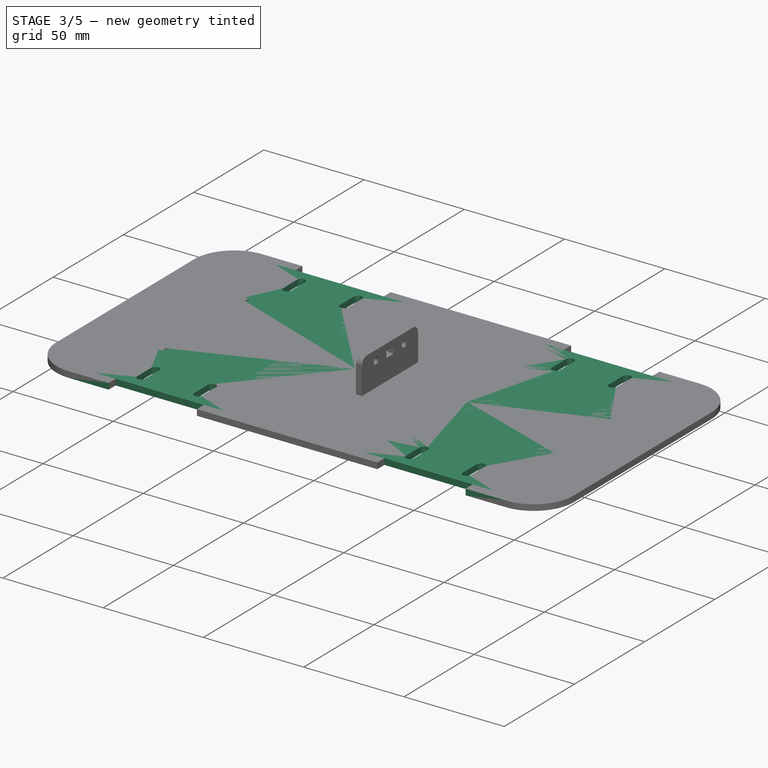
[diagram: stage 3 of 5 — iso view after this stage's code; geometry added in this stage tinted green]
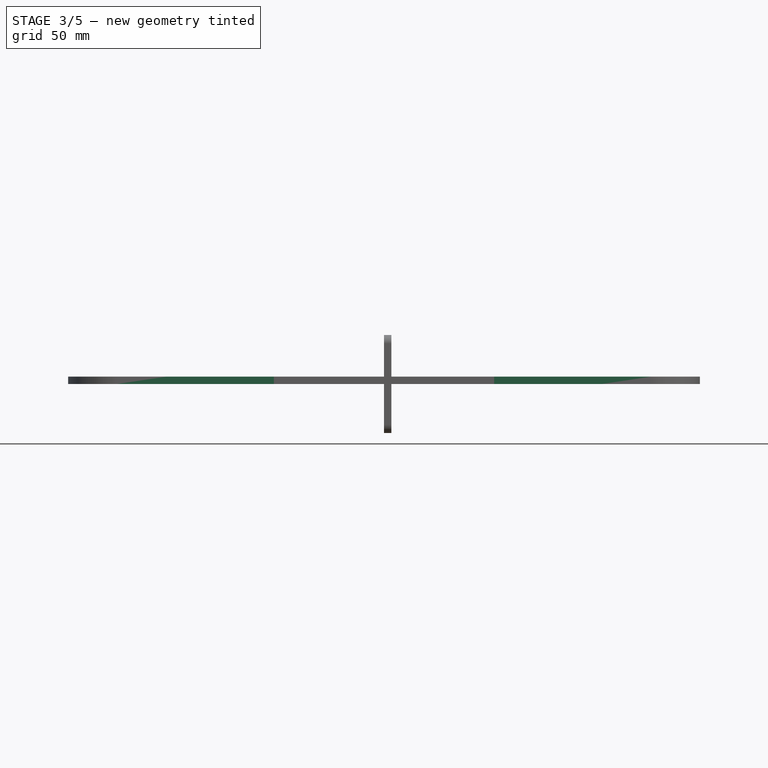
[diagram: stage 3 of 5 — front view after this stage's code; geometry added in this stage tinted green]
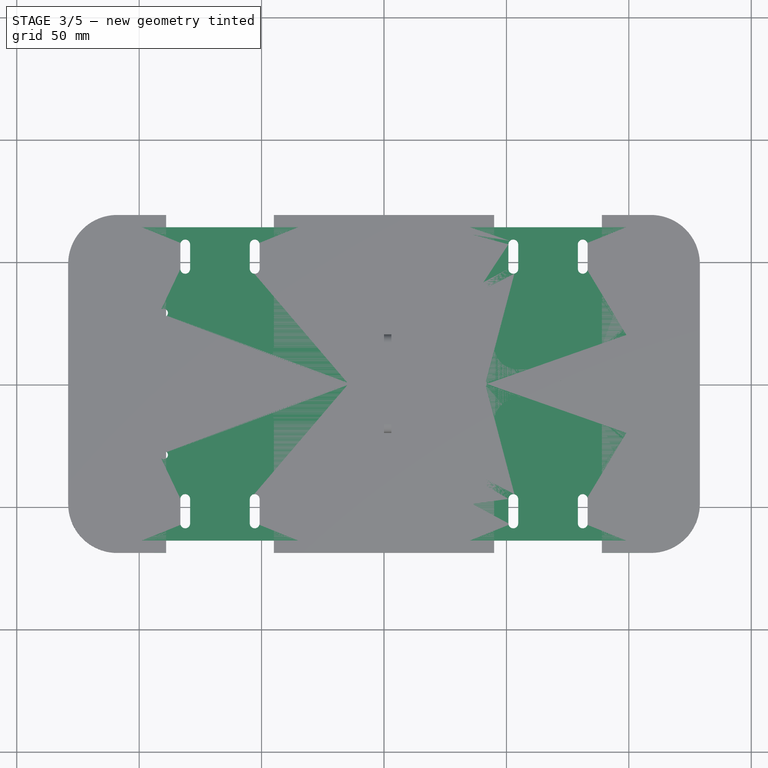
[diagram: stage 3 of 5 — top view after this stage's code; geometry added in this stage tinted green]
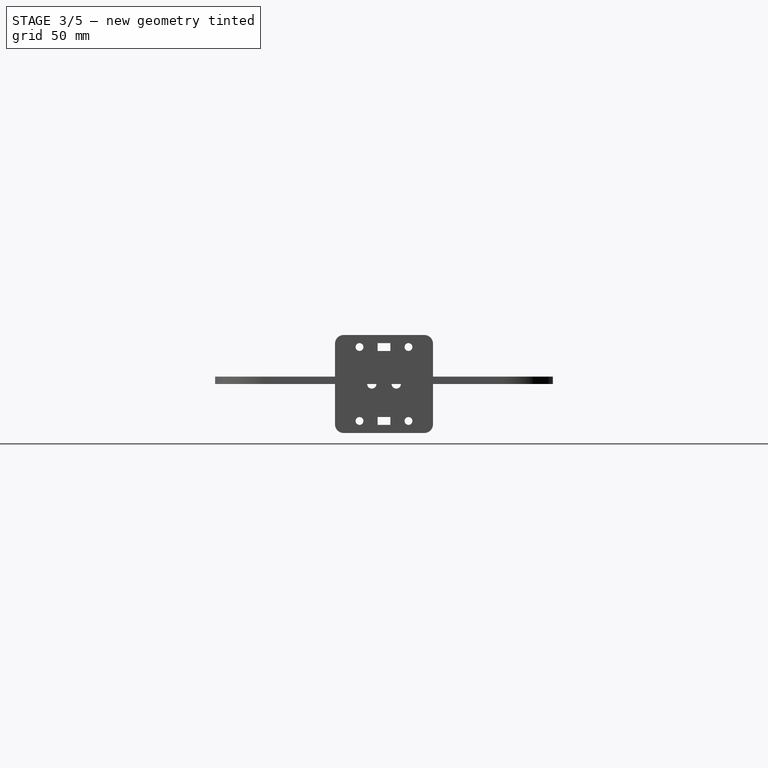
[diagram: stage 3 of 5 — right view after this stage's code; geometry added in this stage tinted green]
FEATURE [Sketcher::SketchObject] Sketch004
  ExternalGeometry = -> [Pad]
  MapMode = 5
  Placement = pos=(0,0,3) rot=(0,0,1;0rad)
  Support = -> [Pad]
  expr: Constraints[2] = Values.hinge_pitch
  sketch-geometry (3):
    g0: Circle CenterX=-74.25 CenterY=0 CenterZ=0 NormalX=0 NormalY=0 NormalZ=1 AngleXU=0 Radius=2.5
    g1: Circle CenterX=-59.75 CenterY=0 CenterZ=0 NormalX=0 NormalY=0 NormalZ=1 AngleXU=0 Radius=2.5
    g2: LineSegment [constr] StartX=-67 StartY=-6 StartZ=0 EndX=-67 EndY=6 EndZ=0
  constraints (8):
    c: Diameter(g0) = 5
    c: Equal(g1,g0)
    c: DistanceX(g0,g1) = 14.5
    c: Horizontal(g1,g0)
    c: Symmetric(g-3,g-3,g2)
    c: Symmetric(g0,g1,g2)
    c: PointOnObject(g2,g-4)
    c: PointOnObject(g0,g-1)
FEATURE [PartDesign::Pocket] Pocket
  BaseFeature = -> Pad
  Length = 5
  Length2 = 100
  Profile = -> Sketch004
  Refine = true
  Type = 1
FEATURE [PartDesign::Mirrored] Mirrored
  MirrorPlane = -> Sketch004 [V_Axis]
  Refine = true
FEATURE [PartDesign::MultiTransform] MultiTransform  label="Hinge holes"
  BaseFeature = -> Pocket
  Originals = -> [Pocket]
  Refine = true
  Transformations = -> [Mirrored]
FEATURE [Sketcher::SketchObject] Sketch019
  ExternalGeometry = -> [MultiTransform003]
  MapMode = 5
  Placement = pos=(0,0,3) rot=(0,0,1;0rad)
  Support = -> [MultiTransform003]
  sketch-geometry (4):
    g0: LineSegment StartX=-89 StartY=64 StartZ=0 EndX=89 EndY=64 EndZ=0
    g1: LineSegment StartX=89 StartY=64 StartZ=0 EndX=89 EndY=-64 EndZ=0
    g2: LineSegment StartX=89 StartY=-64 StartZ=0 EndX=-89 EndY=-64 EndZ=0
    g3: LineSegment StartX=-89 StartY=-64 StartZ=0 EndX=-89 EndY=64 EndZ=0
  constraints (10):
    c: Coincident(g2,g3)
    c: Coincident(g0,g3)
    c: Coincident(g0,g1)
    c: Coincident(g2,g-3)
    c: Coincident(g0,g-4)
    c: Horizontal(g0)
    c: Horizontal(g2)
    c: Vertical(g1)
    c: Vertical(g3)
    c: Coincident(g2,g1)
FEATURE [PartDesign::Pad] Pad004
  BaseFeature = -> MultiTransform003
  Length = 3
  Length2 = 100
  Profile = -> Sketch019
  Refine = true
  Reversed = true
  Type = 0
FEATURE [Sketcher::SketchObject] Sketch020
  ExternalGeometry = -> [Pad004]
  MapMode = 5
  Placement = pos=(0,0,3) rot=(0,0,1;0rad)
  Support = -> [Pad004]
  expr: Constraints[19] = Sketch013.Constraints.suspension_offset * 2
  sketch-geometry (10):
    g0: ArcOfCircle CenterX=52.8125 CenterY=-47 CenterZ=0 NormalX=0 NormalY=0 NormalZ=1 AngleXU=0 Radius=2 StartAngle=-1.8e-15 EndAngle=3.14159
    g1: ArcOfCircle CenterX=52.8125 CenterY=-57 CenterZ=0 NormalX=0 NormalY=0 NormalZ=1 AngleXU=0 Radius=2 StartAngle=3.14159 EndAngle=6.28319
    g2: LineSegment StartX=50.8125 StartY=-47 StartZ=0 EndX=50.8125 EndY=-57 EndZ=0
    g3: LineSegment StartX=54.8125 StartY=-47 StartZ=0 EndX=54.8125 EndY=-57 EndZ=0
    g4: ArcOfCircle CenterX=81.1875 CenterY=-47 CenterZ=0 NormalX=0 NormalY=0 NormalZ=1 AngleXU=0 Radius=2 StartAngle=-9e-16 EndAngle=3.14159
    g5: ArcOfCircle CenterX=81.1875 CenterY=-57 CenterZ=0 NormalX=0 NormalY=0 NormalZ=1 AngleXU=0 Radius=2 StartAngle=3.14159 EndAngle=6.28319
    g6: LineSegment StartX=79.1875 StartY=-47 StartZ=0 EndX=79.1875 EndY=-57 EndZ=0
    g7: LineSegment StartX=83.1875 StartY=-47 StartZ=0 EndX=83.1875 EndY=-57 EndZ=0
    g8: GeomPoint X=67 Y=-52 Z=0
    g9: GeomPoint X=67 Y=-64 Z=0
  constraints (22):
    c: Tangent(g0,g3) = 1.5708
    c: Tangent(g0,g2) = -1.5708
    c: Tangent(g2,g1) = -1.5708
    c: Tangent(g3,g1) = 1.5708
    c: Vertical(g2)
    c: Equal(g0,g1)
    c: Tangent(g4,g7) = 1.5708
    c: Tangent(g4,g6) = -1.5708
    c: Tangent(g6,g5) = -1.5708
    c: Tangent(g7,g5) = 1.5708
    c: Vertical(g6)
    c: Equal(g4,g5)
    c: Equal(g3,g6)
    c: Horizontal(g0,g4)
    c: Equal(g4,g0)
    c: Diameter(g0) = 4
    c: Symmetric(g1,g4,g8)
    c: Vertical(g9,g8)
    c: DistanceY(g7,g7) = 10
    c: DistanceX(g0,g4) = 28.375
    c: Symmetric(g-3,g-3,g9)
    c: DistanceY(g9,g8) = 12
FEATURE [PartDesign::Pocket] Pocket011
  BaseFeature = -> Pad004
  Length = 5
  Length2 = 100
  Profile = -> Sketch020
  Refine = true
  Type = 1
FEATURE [PartDesign::Mirrored] Mirrored013
  MirrorPlane = -> Sketch020 [V_Axis]
  Refine = true
FEATURE [PartDesign::Mirrored] Mirrored014
  MirrorPlane = -> Sketch020 [H_Axis]
  Refine = true
FEATURE [PartDesign::MultiTransform] MultiTransform004  label="Suspension slots"
  BaseFeature = -> Pocket011
  Originals = -> [Pocket011]
  Refine = true
  Transformations = -> [Mirrored013,Mirrored014]
FEATURE [Sketcher::SketchObject] Sketch021
  ExternalGeometry = -> [MultiTransform004]
  MapMode = 5
  Placement = pos=(0,0,3) rot=(0,0,1;0rad)
  Support = -> [MultiTransform004]
  sketch-geometry (4):
    g0: LineSegment StartX=-99 StartY=-20 StartZ=0 EndX=-129 EndY=-20 EndZ=0
    g1: LineSegment StartX=-129 StartY=-20 StartZ=0 EndX=-129 EndY=-69 EndZ=0
    g2: LineSegment StartX=-129 StartY=-69 StartZ=0 EndX=-99 EndY=-69 EndZ=0
    g3: LineSegment StartX=-99 StartY=-69 StartZ=0 EndX=-99 EndY=-20 EndZ=0
  constraints (11):
    c: Coincident(g0,g1)
    c: Coincident(g1,g2)
    c: Coincident(g2,g3)
    c: Coincident(g3,g0)
    c: Horizontal(g0)
    c: Horizontal(g2)
    c: Vertical(g1)
    c: Vertical(g3)
    c: DistanceY(g0,g-1) = 20
    c: PointOnObject(g0,g-4)
    c: Coincident(g2,g-5)
FEATURE [PartDesign::Pocket] Pocket012
  BaseFeature = -> MultiTransform004
  Length = 5
  Length2 = 100
  Profile = -> Sketch021
  Refine = true
  Type = 1
FEATURE [PartDesign::Mirrored] Mirrored015
  MirrorPlane = -> Sketch021 [V_Axis]
  Refine = true
FEATURE [PartDesign::Mirrored] Mirrored016
  MirrorPlane = -> Sketch021 [H_Axis]
  Refine = true
FEATURE [PartDesign::MultiTransform] MultiTransform005  label="Heatsink cutout"
  BaseFeature = -> Pocket012
  Originals = -> [Pocket012]
  Refine = true
  Transformations = -> [Mirrored015,Mirrored016]
FEATURE [TechDraw::DrawSVGTemplate] Template001
  Height = 210
  Orientation = 1
  Width = 297
FEATURE [Sketcher::SketchObject] Sketch022
  ExternalGeometry = -> [MultiTransform005]
  MapMode = 5
  Placement = pos=(0,0,3) rot=(0,0,1;0rad)
  Support = -> [MultiTransform005]
  sketch-geometry (11):
    g0: Circle CenterX=17.5 CenterY=-59 CenterZ=0 NormalX=0 NormalY=0 NormalZ=1 AngleXU=0 Radius=6
    g1: GeomPoint X=0 Y=-69 Z=0
    g2: GeomPoint X=17.5 Y=-69 Z=0
    g3: Circle CenterX=-15 CenterY=49 CenterZ=0 NormalX=0 NormalY=0 NormalZ=1 AngleXU=0 Radius=9
    g4: LineSegment [constr] StartX=-26.8357 StartY=49 StartZ=0 EndX=-9.08216 EndY=38.75 EndZ=0
    g5: LineSegment [constr] StartX=-9.08216 StartY=38.75 StartZ=0 EndX=-9.08216 EndY=59.25 EndZ=0
    g6: LineSegment [constr] StartX=-9.08216 StartY=59.25 StartZ=0 EndX=-26.8357 EndY=49 EndZ=0
    g7: Circle [constr] CenterX=-15 CenterY=49 CenterZ=0 NormalX=0 NormalY=0 NormalZ=1 AngleXU=0 Radius=11.8357
    g8: Circle CenterX=-26.8357 CenterY=49 CenterZ=0 NormalX=0 NormalY=0 NormalZ=1 AngleXU=0 Radius=1.5
    g9: Circle CenterX=-9.08216 CenterY=59.25 CenterZ=0 NormalX=0 NormalY=0 NormalZ=1 AngleXU=0 Radius=1.5
    g10: Circle CenterX=-9.08216 CenterY=38.75 CenterZ=0 NormalX=0 NormalY=0 NormalZ=1 AngleXU=0 Radius=1.5
  constraints (26):
    c: Diameter(g0) = 12
    c: PointOnObject(g1,g-3)
    c: PointOnObject(g1,g-2)
    c: Symmetric(g-3,g1,g2)
    c: Vertical(g0,g2)
    c: DistanceY(g-3,g0) = 10
    c: Coincident(g4,g5)
    c: Coincident(g5,g6)
    c: Coincident(g6,g4)
    c: Equal(g4,g5)
    c: Equal(g4,g6)
    c: PointOnObject(g4,g7)
    c: PointOnObject(g5,g7)
    c: PointOnObject(g6,g7)
    c: Distance(g5) = 20.5
    c: Coincident(g7,g3)
    c: Vertical(g5)
    c: Diameter(g3) = 18
    c: Coincident(g8,g4)
    c: Equal(g8,g10)
    c: Equal(g10,g9)
    c: Diameter(g9) = 3
    c: DistanceX(g3,g-1) = 15
    c: DistanceY(g3,g-4) = 20
    c: Coincident(g10,g4)
    c: Coincident(g5,g9)
FEATURE [PartDesign::Pocket] Pocket013  label="Switch hole"
  BaseFeature = -> MultiTransform005
  Length = 3
  Length2 = 100
  Profile = -> Sketch022
  Refine = true
  Type = 0
FEATURE [Sketcher::SketchObject] Sketch023
  MapMode = 5
  Placement = pos=(0,0,3) rot=(0,0,1;0rad)
  Support = -> [Pocket013]
  sketch-geometry (16):
    g0: LineSegment StartX=9 StartY=61 StartZ=0 EndX=36 EndY=61 EndZ=0
    g1: LineSegment StartX=36 StartY=61 StartZ=0 EndX=36 EndY=-49 EndZ=0
    g2: LineSegment StartX=36 StartY=-49 StartZ=0 EndX=9 EndY=-49 EndZ=0
    g3: LineSegment StartX=9 StartY=-49 StartZ=0 EndX=9 EndY=61 EndZ=0
    g4: LineSegment [constr] StartX=4.5 StartY=40 StartZ=0 EndX=40.5 EndY=40 EndZ=0
    g5: LineSegment [constr] StartX=40.5 StartY=40 StartZ=0 EndX=40.5 EndY=-40 EndZ=0
    g6: LineSegment [constr] StartX=40.5 StartY=-40 StartZ=0 EndX=4.5 EndY=-40 EndZ=0
    g7: LineSegment [constr] StartX=4.5 StartY=-40 StartZ=0 EndX=4.5 EndY=40 EndZ=0
    g8: GeomPoint X=22.5 Y=61 Z=0
    g9: GeomPoint X=22.5 Y=40 Z=0
    g10: Circle CenterX=4.5 CenterY=40 CenterZ=0 NormalX=0 NormalY=0 NormalZ=1 AngleXU=0 Radius=1.5
    g11: Circle CenterX=40.5 CenterY=40 CenterZ=0 NormalX=0 NormalY=0 NormalZ=1 AngleXU=0 Radius=1.5
    g12: Circle CenterX=4.5 CenterY=-40 CenterZ=0 NormalX=0 NormalY=0 NormalZ=1 AngleXU=0 Radius=1.5
    g13: Circle CenterX=40.5 CenterY=-40 CenterZ=0 NormalX=0 NormalY=0 NormalZ=1 AngleXU=0 Radius=1.5
    g14: Circle CenterX=4.5 CenterY=0 CenterZ=0 NormalX=0 NormalY=0 NormalZ=1 AngleXU=0 Radius=1.5
    g15: Circle CenterX=40.5 CenterY=0 CenterZ=0 NormalX=0 NormalY=0 NormalZ=1 AngleXU=0 Radius=1.5
  constraints (40):
    c: Coincident(g0,g1)
    c: Coincident(g1,g2)
    c: Coincident(g2,g3)
    c: Coincident(g3,g0)
    c: Horizontal(g0)
    c: Horizontal(g2)
    c: Vertical(g1)
    c: Vertical(g3)
    c: DistanceY(g1,g1) = 110
    c: DistanceX(g0,g0) = 27
    c: DistanceX(g2) = 9
    c: DistanceY(g2) = -49
    c: Coincident(g4,g5)
    c: Coincident(g5,g6)
    c: Coincident(g6,g7)
    c: Coincident(g7,g4)
    c: Horizontal(g4)
    c: Horizontal(g6)
    c: Vertical(g7)
    c: Symmetric(g5,g4,g-1)
    c: DistanceY(g5,g5) = 80
    c: DistanceX(g4,g4) = 36
    c: Symmetric(g4,g4,g9)
    c: Symmetric(g0,g0,g8)
    c: Vertical(g8,g9)
    c: Coincident(g11,g4)
    c: Coincident(g12,g6)
    c: Coincident(g13,g5)
    c: PointOnObject(g14,g7)
    c: PointOnObject(g15,g5)
    c: Equal(g10,g11)
    c: Equal(g11,g12)
    c: Equal(g12,g13)
    c: Equal(g13,g14)
    c: Equal(g14,g15)
    c: Diameter(g10) = 3
    c: PointOnObject(g14,g-1)
    c: PointOnObject(g15,g-1)
    c: Coincident(g10,g4)
    c: DistanceX(g-1,g10) = 4.5
FEATURE [PartDesign::Pocket] Pocket014  label="Battery Slot"
  BaseFeature = -> Pocket013
  Length = 5
  Length2 = 100
  Profile = -> Sketch023
  Refine = true
  Type = 1
FEATURE [Sketcher::SketchObject] Sketch024
  MapMode = 5
  Placement = pos=(0,0,3) rot=(0,0,1;0rad)
  Support = -> [Pocket014]
  sketch-geometry (10):
    g0: LineSegment [constr] StartX=-90 StartY=29 StartZ=0 EndX=-20 EndY=29 EndZ=0
    g1: LineSegment [constr] StartX=-20 StartY=29 StartZ=0 EndX=-20 EndY=-29 EndZ=0
    g2: LineSegment [constr] StartX=-20 StartY=-29 StartZ=0 EndX=-90 EndY=-29 EndZ=0
    g3: LineSegment [constr] StartX=-90 StartY=-29 StartZ=0 EndX=-90 EndY=29 EndZ=0
    g4: GeomPoint X=-20 Y=0 Z=0
    g5: Circle CenterX=-90 CenterY=29 CenterZ=0 NormalX=0 NormalY=0 NormalZ=1 AngleXU=0 Radius=1.75
    g6: Circle CenterX=-20 CenterY=29 CenterZ=0 NormalX=0 NormalY=0 NormalZ=1 AngleXU=0 Radius=1.75
    g7: Circle CenterX=-20 CenterY=-29 CenterZ=0 NormalX=0 NormalY=0 NormalZ=1 AngleXU=0 Radius=1.75
    g8: Circle CenterX=-90 CenterY=-29 CenterZ=0 NormalX=0 NormalY=0 NormalZ=1 AngleXU=0 Radius=1.75
    g9: Circle CenterX=-10 CenterY=0 CenterZ=0 NormalX=0 NormalY=0 NormalZ=1 AngleXU=0 Radius=5
  constraints (24):
    c: Coincident(g0,g1)
    c: Coincident(g1,g2)
    c: Coincident(g2,g3)
    c: Coincident(g3,g0)
    c: Horizontal(g0)
    c: Horizontal(g2)
    c: Vertical(g1)
    c: Vertical(g3)
    c: DistanceX(g0,g0) = 70
    c: DistanceY(g3,g3) = 58
    c: PointOnObject(g4,g-1)
    c: Symmetric(g0,g1,g4)
    c: DistanceX(g1,g-1) = 20
    c: Coincident(g6,g0)
    c: Coincident(g7,g1)
    c: Coincident(g8,g2)
    c: Coincident(g0,g5)
    c: Equal(g5,g6)
    c: Equal(g6,g7)
    c: Equal(g7,g8)
    c: Diameter(g5) = 3.5
    c: PointOnObject(g9,g-1)
    c: Diameter(g9) = 10
    c: DistanceX(g9,g-1) = 10
FEATURE [PartDesign::Pocket] Pocket015  label="pi mount"
  BaseFeature = -> Pocket014
  Length = 5
  Length2 = 100
  Profile = -> Sketch024
  Refine = true
  Type = 1
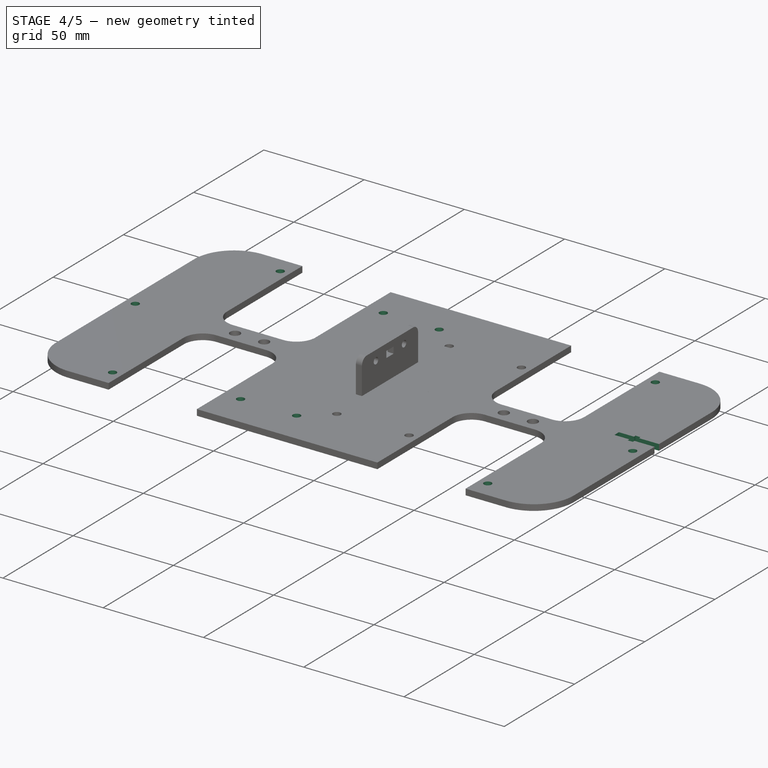
[diagram: stage 4 of 5 — iso view after this stage's code; geometry added in this stage tinted green]
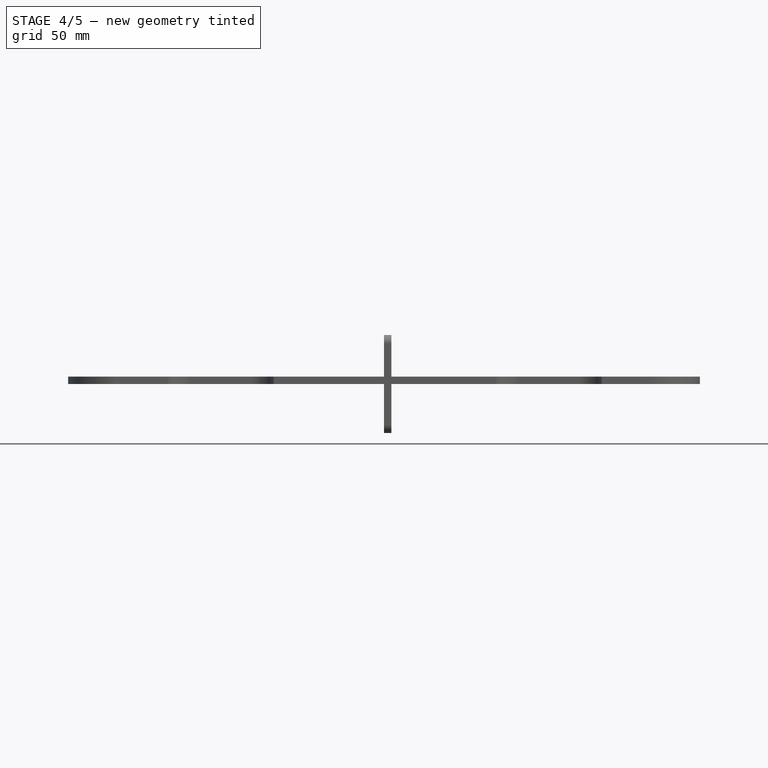
[diagram: stage 4 of 5 — front view after this stage's code; geometry added in this stage tinted green]
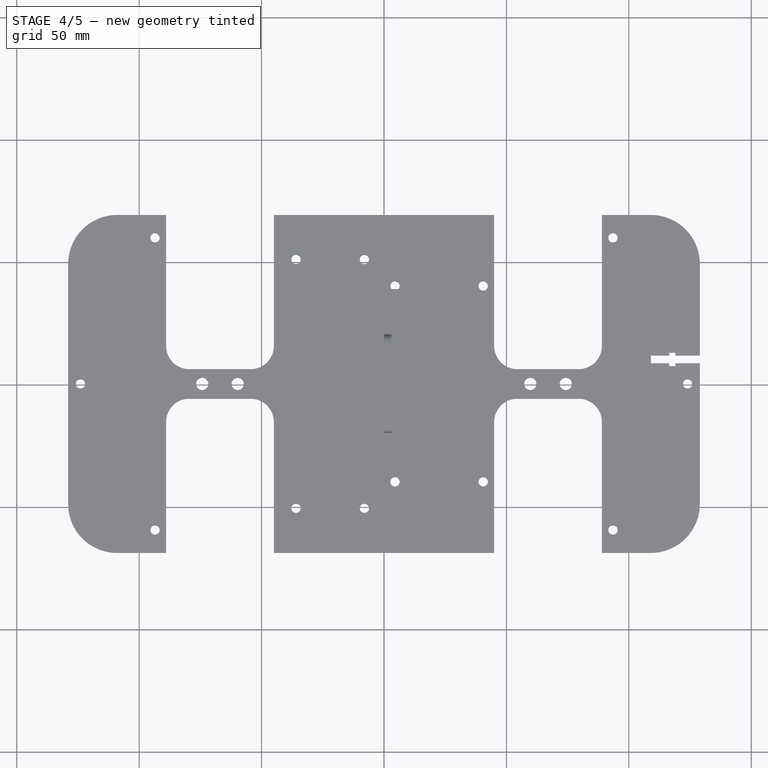
[diagram: stage 4 of 5 — top view after this stage's code; geometry added in this stage tinted green]
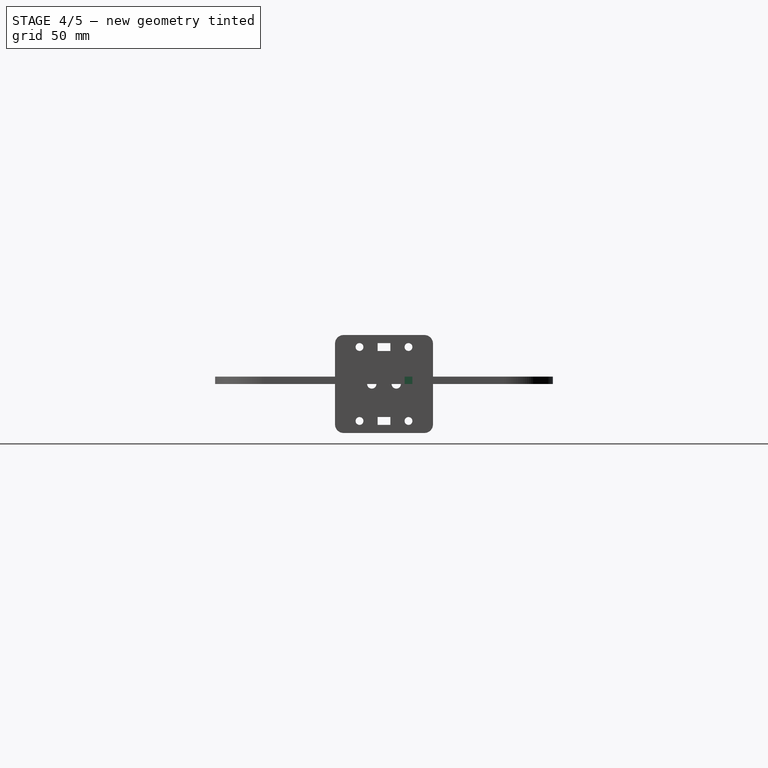
[diagram: stage 4 of 5 — right view after this stage's code; geometry added in this stage tinted green]
FEATURE [Sketcher::SketchObject] Sketch005
  ExternalGeometry = -> [MultiTransform]
  MapMode = 5
  Placement = pos=(0,0,3) rot=(0,0,1;0rad)
  Support = -> [Clone]
  expr: Constraints[0] = Values.m3_inset_hole
  sketch-geometry (3):
    g0: Circle CenterX=-124 CenterY=0 CenterZ=0 NormalX=0 NormalY=0 NormalZ=1 AngleXU=0 Radius=1.9
    g1: Circle CenterX=-93.52 CenterY=-59.69 CenterZ=0 NormalX=0 NormalY=0 NormalZ=1 AngleXU=0 Radius=1.9
    g2: Circle CenterX=-93.52 CenterY=59.69 CenterZ=0 NormalX=0 NormalY=0 NormalZ=1 AngleXU=0 Radius=1.9
  constraints (8):
    c: Diameter(g0) = 3.8
    c: Equal(g1,g0)
    c: DistanceX(g-4,g0) = 5
    c: PointOnObject(g0,g-1)
    c: DistanceX(g0,g1) = 30.48
    c: DistanceY(g1,g0) = 59.69
    c: Equal(g2,g0)
    c: Symmetric(g2,g1,g-1)
FEATURE [PartDesign::Pocket] Pocket001
  BaseFeature = -> MultiTransform
  Length = 5
  Length2 = 100
  Profile = -> Sketch005
  Refine = true
  Type = 1
FEATURE [PartDesign::Mirrored] Mirrored006  label="Driver mount"
  BaseFeature = -> Pocket001
  MirrorPlane = -> Sketch005 [V_Axis]
  Originals = -> [Pocket001]
  Refine = true
FEATURE [Sketcher::SketchObject] Sketch014
  ExternalGeometry = -> [Mirrored006]
  MapMode = 5
  Placement = pos=(0,0,3) rot=(0,0,1;0rad)
  Support = -> [Mirrored006]
  expr: Constraints[16] = Values.m3_inset_hole
  sketch-geometry (8):
    g0: LineSegment [constr] StartX=-35.94 StartY=50.8 StartZ=0 EndX=-8 EndY=50.8 EndZ=0
    g1: LineSegment [constr] StartX=-8 StartY=50.8 StartZ=0 EndX=-8 EndY=-50.8 EndZ=0
    g2: LineSegment [constr] StartX=-8 StartY=-50.8 StartZ=0 EndX=-35.94 EndY=-50.8 EndZ=0
    g3: LineSegment [constr] StartX=-35.94 StartY=-50.8 StartZ=0 EndX=-35.94 EndY=50.8 EndZ=0
    g4: Circle CenterX=-35.94 CenterY=50.8 CenterZ=0 NormalX=0 NormalY=0 NormalZ=1 AngleXU=0 Radius=1.9
    g5: Circle CenterX=-8 CenterY=50.8 CenterZ=0 NormalX=0 NormalY=0 NormalZ=1 AngleXU=0 Radius=1.9
    g6: Circle CenterX=-8 CenterY=-50.8 CenterZ=0 NormalX=0 NormalY=0 NormalZ=1 AngleXU=0 Radius=1.9
    g7: Circle CenterX=-35.94 CenterY=-50.8 CenterZ=0 NormalX=0 NormalY=0 NormalZ=1 AngleXU=0 Radius=1.9
  constraints (19):
    c: Coincident(g0,g1)
    c: Coincident(g1,g2)
    c: Coincident(g2,g3)
    c: Coincident(g3,g0)
    c: Horizontal(g0)
    c: Horizontal(g2)
    c: Vertical(g3)
    c: DistanceY(g1,g1) = 101.6
    c: DistanceX(g2,g2) = 27.94
    c: Coincident(g4,g0)
    c: Coincident(g5,g0)
    c: Coincident(g7,g2)
    c: Symmetric(g6,g5,g-1)
    c: Equal(g4,g5)
    c: Equal(g5,g6)
    c: Equal(g6,g7)
    c: Diameter(g4) = 3.8
    c: Coincident(g6,g1)
    c: DistanceX(g6,g-1) = 8
FEATURE [PartDesign::Pocket] Pocket008
  BaseFeature = -> Mirrored006
  Length = 5
  Length2 = 100
  Profile = -> Sketch014
  Refine = true
  Type = 1
FEATURE [PartDesign::ShapeBinder] ShapeBinder001
  Support = -> [Pocket015]
  TraceSupport = false
FEATURE [Sketcher::SketchObject] Sketch025
  ExternalGeometry = -> [ShapeBinder001]
  MapMode = 5
  Placement = pos=(0,0,3) rot=(0,0,1;0rad)
  Support = -> [Pocket008]
  expr: Constraints[3] = Values.m3_inset_hole
  sketch-geometry (4):
    g0: Circle CenterX=40.5 CenterY=-40 CenterZ=0 NormalX=0 NormalY=0 NormalZ=1 AngleXU=0 Radius=1.9
    g1: Circle CenterX=4.5 CenterY=40 CenterZ=0 NormalX=0 NormalY=0 NormalZ=1 AngleXU=0 Radius=1.9
    g2: Circle CenterX=4.5 CenterY=-40 CenterZ=0 NormalX=0 NormalY=0 NormalZ=1 AngleXU=0 Radius=1.9
    g3: Circle CenterX=40.5 CenterY=40 CenterZ=0 NormalX=0 NormalY=0 NormalZ=1 AngleXU=0 Radius=1.9
  constraints (8):
    c: Equal(g2,g0)
    c: Equal(g0,g1)
    c: Equal(g1,g3)
    c: Diameter(g0) = 3.8
    c: Coincident(g1,g-3)
    c: Coincident(g3,g-4)
    c: Coincident(g2,g-5)
    c: Coincident(g0,g-6)
FEATURE [PartDesign::Pocket] Pocket016
  BaseFeature = -> Pocket008
  Length = 5
  Length2 = 100
  Profile = -> Sketch025
  Refine = true
  Type = 1
FEATURE [PartDesign::ShapeBinder] ShapeBinder002
  Support = -> [Pocket016]
  TraceSupport = false
FEATURE [Sketcher::SketchObject] Sketch026
  ExternalGeometry = -> [ShapeBinder002]
  MapMode = 5
  Support = -> [XY_Plane004]
  sketch-geometry (8):
    g0: Circle CenterX=-124 CenterY=0 CenterZ=0 NormalX=0 NormalY=0 NormalZ=1 AngleXU=0 Radius=1.6
    g1: Circle CenterX=-93.52 CenterY=59.69 CenterZ=0 NormalX=0 NormalY=0 NormalZ=1 AngleXU=0 Radius=1.6
    g2: Circle CenterX=-93.52 CenterY=-59.69 CenterZ=0 NormalX=0 NormalY=0 NormalZ=1 AngleXU=0 Radius=1.6
    g3: Circle CenterX=-35.94 CenterY=-50.8 CenterZ=0 NormalX=0 NormalY=0 NormalZ=1 AngleXU=0 Radius=1.6
    g4: Circle CenterX=-35.94 CenterY=50.8 CenterZ=0 NormalX=0 NormalY=0 NormalZ=1 AngleXU=0 Radius=1.6
    g5: Circle CenterX=93.52 CenterY=59.69 CenterZ=0 NormalX=0 NormalY=0 NormalZ=1 AngleXU=0 Radius=1.6
    g6: Circle CenterX=124 CenterY=0 CenterZ=0 NormalX=0 NormalY=0 NormalZ=1 AngleXU=0 Radius=1.6
    g7: Circle CenterX=93.52 CenterY=-59.69 CenterZ=0 NormalX=0 NormalY=0 NormalZ=1 AngleXU=0 Radius=1.6
  constraints (16):
    c: Coincident(g1,g-4)
    c: Coincident(g2,g-7)
    c: Coincident(g3,g-6)
    c: Coincident(g4,g-5)
    c: Coincident(g7,g-8)
    c: Coincident(g5,g-10)
    c: Coincident(g6,g-9)
    c: Coincident(g0,g-3)
    c: Equal(g7,g0)
    c: Equal(g0,g1)
    c: Equal(g1,g4)
    c: Equal(g2,g3)
    c: Equal(g3,g7)
    c: Equal(g7,g6)
    c: Equal(g6,g5)
    c: Diameter(g1) = 3.2
FEATURE [PartDesign::Pocket] Pocket017  label="support holes"
  BaseFeature = -> Pocket015
  Length = 5
  Length2 = 100
  Midplane = true
  Profile = -> Sketch026
  Refine = true
  Type = 1
FEATURE [PartDesign::Body] Body005  label="Connector shim"
  Group = -> [Sketch027,Pad005,Sketch028,Pocket018]
  Origin = -> Origin005
  Placement = pos=(0,-100,0) rot=(0,0,1;0rad)
  Tip = -> Pocket018
FEATURE [TechDraw::DrawViewPart] View005
  CoarseView = false
  Direction = (0,0,1)
  Focus = 100
  HardHidden = false
  IsoCount = 0
  IsoHidden = false
  IsoVisible = false
  LockPosition = false
  Perspective = false
  Rotation = 0
  ScaleType = 0
  SeamHidden = false
  SeamVisible = false
  SmoothHidden = false
  SmoothVisible = false
  Source = -> [Pocket018]
  X = 30.6951
  Y = 151.524
FEATURE [Sketcher::SketchObject] Sketch029
  ExternalGeometry = -> [Pocket017]
  MapMode = 5
  Support = -> [XY_Plane004]
  sketch-geometry (13):
    g0: LineSegment StartX=109 StartY=11.6 StartZ=0 EndX=116.5 EndY=11.6 EndZ=0
    g1: LineSegment StartX=129 StartY=11.6 StartZ=0 EndX=129 EndY=8.4 EndZ=0
    g2: LineSegment StartX=129 StartY=8.4 StartZ=0 EndX=119 EndY=8.4 EndZ=0
    g3: LineSegment StartX=109 StartY=8.4 StartZ=0 EndX=109 EndY=11.6 EndZ=0
    g4: LineSegment StartX=116.5 StartY=12.75 StartZ=0 EndX=119 EndY=12.75 EndZ=0
    g5: LineSegment StartX=119 StartY=12.75 StartZ=0 EndX=119 EndY=11.6 EndZ=0
    g6: LineSegment StartX=119 StartY=7.25 StartZ=0 EndX=116.5 EndY=7.25 EndZ=0
    g7: LineSegment StartX=116.5 StartY=7.25 StartZ=0 EndX=116.5 EndY=8.4 EndZ=0
    g8: GeomPoint X=119 Y=10 Z=0
    g9: LineSegment StartX=119 StartY=11.6 StartZ=0 EndX=129 EndY=11.6 EndZ=0
    g10: LineSegment StartX=116.5 StartY=11.6 StartZ=0 EndX=116.5 EndY=12.75 EndZ=0
    g11: LineSegment StartX=116.5 StartY=8.4 StartZ=0 EndX=109 EndY=8.4 EndZ=0
    g12: LineSegment StartX=119 StartY=8.4 StartZ=0 EndX=119 EndY=7.25 EndZ=0
  constraints (32):
    c: Coincident(g9,g1)
    c: Coincident(g1,g2)
    c: Coincident(g11,g3)
    c: Coincident(g3,g0)
    c: Horizontal(g0)
    c: Horizontal(g2)
    c: Vertical(g1)
    c: Vertical(g3)
    c: PointOnObject(g1,g-3)
    c: Coincident(g4,g5)
    c: Coincident(g12,g6)
    c: Coincident(g6,g7)
    c: Coincident(g10,g4)
    c: Horizontal(g4)
    c: Horizontal(g6)
    c: Vertical(g5)
    c: Vertical(g7)
    c: DistanceX(g6,g6) = 2.5
    c: DistanceX(g11,g2) = 20
    c: Symmetric(g12,g4,g8)
    c: Symmetric(g0,g1,g8)
    c: DistanceY(g3,g3) = 3.2
    c: DistanceY(g-1,g8) = 10
    c: DistanceY(g7,g10) = 5.5
    c: Tangent(g0,g9)
    c: Coincident(g10,g0)
    c: Tangent(g7,g10)
    c: Coincident(g11,g7)
    c: Tangent(g2,g11)
    c: Coincident(g5,g9)
    c: Coincident(g12,g2)
    c: Tangent(g5,g12)
FEATURE [PartDesign::Pocket] Pocket019
  BaseFeature = -> Pocket017
  Length = 5
  Length2 = 100
  Profile = -> Sketch029
  Refine = true
  Reversed = true
  Type = 1
FEATURE [PartDesign::Mirrored] Mirrored017
  BaseFeature = -> Pocket019
  MirrorPlane = -> Sketch029 [H_Axis]
  Originals = -> [Pocket019]
  Refine = true
FEATURE [Sketcher::SketchObject] Sketch030
  ExternalGeometry = -> [Mirrored017]
  MapMode = 5
  Support = -> [XY_Plane004]
  sketch-geometry (4):
    g0: LineSegment StartX=129 StartY=2.5 StartZ=0 EndX=132 EndY=2.5 EndZ=0
    g1: LineSegment StartX=132 StartY=2.5 StartZ=0 EndX=132 EndY=-2.5 EndZ=0
    g2: LineSegment StartX=132 StartY=-2.5 StartZ=0 EndX=129 EndY=-2.5 EndZ=0
    g3: LineSegment StartX=129 StartY=-2.5 StartZ=0 EndX=129 EndY=2.5 EndZ=0
  constraints (11):
    c: Coincident(g0,g1)
    c: Coincident(g1,g2)
    c: Coincident(g2,g3)
    c: Coincident(g3,g0)
    c: Horizontal(g0)
    c: Horizontal(g2)
    c: Vertical(g1)
    c: PointOnObject(g0,g-3)
    c: DistanceY(g1,g1) = 5
    c: DistanceX(g2,g2) = 3
    c: Symmetric(g2,g0,g-1)
FEATURE [PartDesign::Pad] Pad006
  BaseFeature = -> Mirrored017
  Length = 3
  Length2 = 100
  Profile = -> Sketch030
  Refine = true
  Type = 0
FEATURE [PartDesign::ShapeBinder] ShapeBinder003
  Support = -> [Pad006]
  TraceSupport = false
FEATURE [Sketcher::SketchObject] Sketch031
  ExternalGeometry = -> [ShapeBinder003]
  MapMode = 5
  Placement = pos=(0,0,3) rot=(0,0,1;0rad)
  Support = -> [ShapeBinder003]
  sketch-geometry (12):
    g0: LineSegment StartX=129 StartY=8.4 StartZ=0 EndX=129 EndY=11.6 EndZ=0
    g1: LineSegment StartX=129 StartY=11.6 StartZ=0 EndX=119 EndY=11.6 EndZ=0
    g2: LineSegment StartX=119 StartY=11.6 StartZ=0 EndX=119 EndY=12.75 EndZ=0
    g3: LineSegment StartX=119 StartY=12.75 StartZ=0 EndX=116.5 EndY=12.75 EndZ=0
    g4: LineSegment StartX=116.5 StartY=12.75 StartZ=0 EndX=116.5 EndY=11.6 EndZ=0
    g5: LineSegment StartX=116.5 StartY=11.6 StartZ=0 EndX=109 EndY=11.6 EndZ=0
    g6: LineSegment StartX=109 StartY=11.6 StartZ=0 EndX=109 EndY=8.4 EndZ=0
    g7: LineSegment StartX=109 StartY=8.4 StartZ=0 EndX=116.5 EndY=8.4 EndZ=0
    g8: LineSegment StartX=116.5 StartY=8.4 StartZ=0 EndX=116.5 EndY=7.25 EndZ=0
    g9: LineSegment StartX=116.5 StartY=7.25 StartZ=0 EndX=119 EndY=7.25 EndZ=0
    g10: LineSegment StartX=119 StartY=7.25 StartZ=0 EndX=119 EndY=8.4 EndZ=0
    g11: LineSegment StartX=119 StartY=8.4 StartZ=0 EndX=129 EndY=8.4 EndZ=0
  constraints (24):
    c: Coincident(g-8,g0)
    c: Coincident(g0,g-3)
    c: Coincident(g0,g1)
    c: Coincident(g1,g-3)
    c: Coincident(g1,g2)
    c: Coincident(g2,g-4)
    c: Coincident(g2,g3)
    c: Coincident(g3,g-4)
    c: Coincident(g3,g4)
    c: Coincident(g4,g-5)
    c: Coincident(g4,g5)
    c: Coincident(g5,g-5)
    c: Coincident(g5,g6)
    c: Coincident(g6,g-6)
    c: Coincident(g6,g7)
    c: Coincident(g7,g-6)
    c: Coincident(g7,g8)
    c: Coincident(g8,g-7)
    c: Coincident(g8,g9)
    c: Coincident(g9,g-7)
    c: Coincident(g9,g10)
    c: Coincident(g10,g-8)
    c: Coincident(g10,g11)
    c: Coincident(g11,g0)
FEATURE [PartDesign::Pocket] Pocket020
  BaseFeature = -> Pocket016
  Length = 5
  Length2 = 100
  Profile = -> Sketch031
  Refine = true
  Type = 1
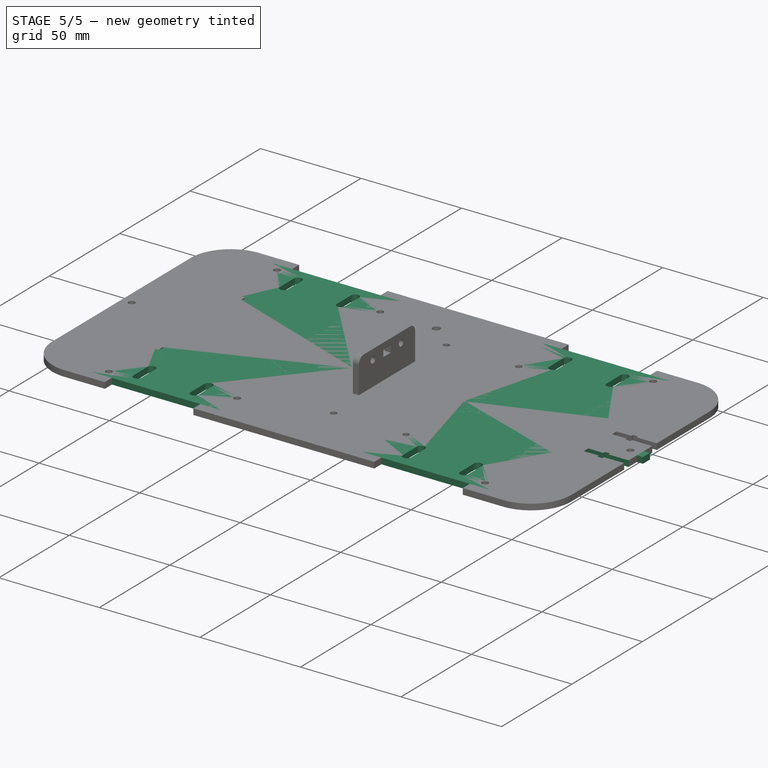
[diagram: stage 5 of 5 — iso view after this stage's code; geometry added in this stage tinted green]
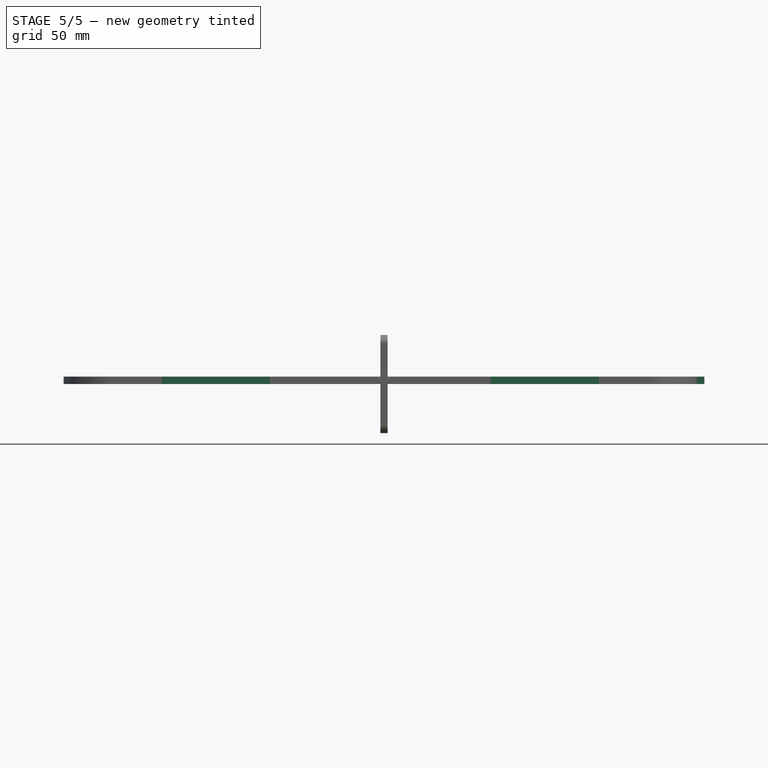
[diagram: stage 5 of 5 — front view after this stage's code; geometry added in this stage tinted green]
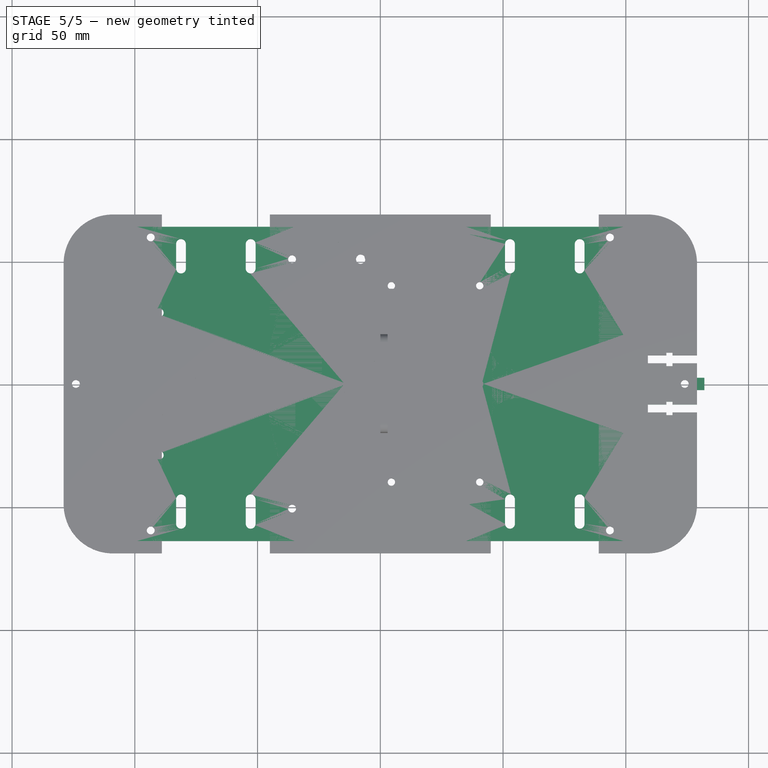
[diagram: stage 5 of 5 — top view after this stage's code; geometry added in this stage tinted green]
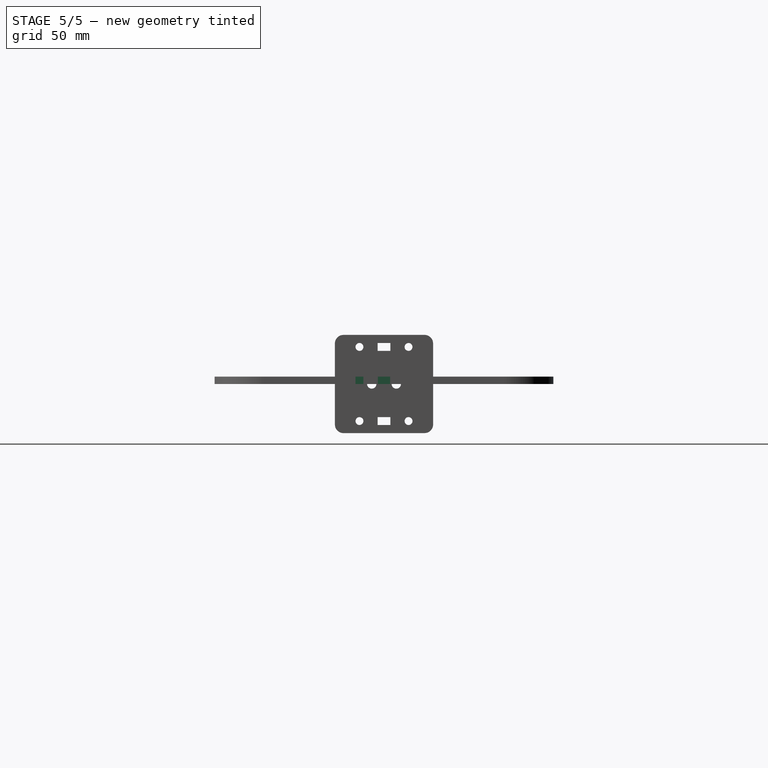
[diagram: stage 5 of 5 — right view after this stage's code; geometry added in this stage tinted green]
FEATURE [Sketcher::SketchObject] Sketch003
  MapMode = 5
  Support = -> [XY_Plane002]
  expr: Constraints[10] = Values.leaf_width
  expr: Constraints[5] = Values.motor_width * 3 / 4
  expr: Constraints[1] = Values.motor_width
  sketch-geometry (17):
    g0: Circle [constr] CenterX=0 CenterY=0 CenterZ=0 NormalX=0 NormalY=0 NormalZ=1 AngleXU=0 Radius=12.5
    g1: LineSegment [constr] StartX=-9.375 StartY=8.26797 StartZ=0 EndX=9.375 EndY=8.26797 EndZ=0
    g2: LineSegment StartX=-19 StartY=14.268 StartZ=0 EndX=19 EndY=14.268 EndZ=0
    g3: LineSegment StartX=19 StartY=14.268 StartZ=0 EndX=19 EndY=5.26797 EndZ=0
    g4: LineSegment StartX=-19 StartY=5.26797 StartZ=0 EndX=-19 EndY=14.268 EndZ=0
    g5: LineSegment StartX=-19 StartY=5.26797 StartZ=0 EndX=-10.2194 EndY=-7.19813 EndZ=0
    g6: LineSegment StartX=19 StartY=5.26797 StartZ=0 EndX=10.2194 EndY=-7.19812 EndZ=0
    g7: LineSegment StartX=-9.375 StartY=8.26797 StartZ=0 EndX=-14.575 EndY=8.26797 EndZ=0
    g8: LineSegment StartX=-14.575 StartY=8.26797 StartZ=0 EndX=-14.575 EndY=11.468 EndZ=0
    g9: LineSegment StartX=-14.575 StartY=11.468 StartZ=0 EndX=-9.375 EndY=11.468 EndZ=0
    g10: LineSegment StartX=-9.375 StartY=11.468 StartZ=0 EndX=-9.375 EndY=8.26797 EndZ=0
    g11: LineSegment StartX=9.375 StartY=8.26797 StartZ=0 EndX=14.575 EndY=8.26797 EndZ=0
    g12: LineSegment StartX=14.575 StartY=8.26797 StartZ=0 EndX=14.575 EndY=11.468 EndZ=0
    g13: LineSegment StartX=14.575 StartY=11.468 StartZ=0 EndX=9.375 EndY=11.468 EndZ=0
    g14: LineSegment StartX=9.375 StartY=11.468 StartZ=0 EndX=9.375 EndY=8.26797 EndZ=0
    g15: ArcOfCircle CenterX=0 CenterY=0 CenterZ=0 NormalX=0 NormalY=0 NormalZ=1 AngleXU=0 Radius=12.5 StartAngle=3.75524 EndAngle=5.66954
    g16: Circle CenterX=0 CenterY=0 CenterZ=0 NormalX=0 NormalY=0 NormalZ=1 AngleXU=0 Radius=3.65
  constraints (47):
    c: Coincident(g0,g-1)
    c: Diameter(g0) = 25
    c: PointOnObject(g1,g0)
    c: PointOnObject(g1,g0)
    c: Horizontal(g1)
    c: DistanceX(g1,g1) = 18.75
    c: Coincident(g2,g3)
    c: Coincident(g4,g2)
    c: Vertical(g3)
    c: Vertical(g4)
    c: DistanceX(g2,g2) = 38
    c: Symmetric(g2,g2,g-2)
    c: DistanceY(g4,g4) = 9
    c: DistanceY(g3,g1) = 3
    c: PointOnObject(g5,g0)
    c: Coincident(g6,g3)
    c: PointOnObject(g6,g0)
    c: Tangent(g6,g0)
    c: Coincident(g7,g8)
    c: Coincident(g8,g9)
    c: Coincident(g9,g10)
    c: Coincident(g10,g7)
    c: Horizontal(g7)
    c: Horizontal(g9)
    c: Vertical(g8)
    c: Vertical(g10)
    c: Coincident(g7,g1)
    c: Coincident(g11,g12)
    c: Coincident(g12,g13)
    c: Coincident(g13,g14)
    c: Coincident(g14,g11)
    c: Horizontal(g11)
    c: Horizontal(g13)
    c: Vertical(g12)
    c: Vertical(g14)
    c: Coincident(g11,g1)
    c: Equal(g9,g13)
    c: DistanceX(g9,g9) = 5.2
    c: Equal(g8,g12)
    c: DistanceY(g12,g12) = 3.2
    c: Equal(g3,g4)
    c: Coincident(g4,g5)
    c: Coincident(g15,g-1)
    c: Coincident(g15,g6)
    c: Coincident(g15,g5)
    c: Coincident(g16,g15)
    c: Diameter(g16) = 7.3
FEATURE [PartDesign::Pad] Pad003
  Length = 3
  Length2 = 100
  Profile = -> Sketch003
  Refine = true
  Type = 0
FEATURE [Sketcher::SketchObject] Sketch009
  MapMode = 5
  Placement = pos=(0,0,3) rot=(0,0,1;0rad)
  Support = -> [Pad003]
  sketch-geometry (2):
    g0: Circle CenterX=0 CenterY=8.25 CenterZ=0 NormalX=0 NormalY=0 NormalZ=1 AngleXU=0 Radius=1.75
    g1: Circle CenterX=0 CenterY=-8.25 CenterZ=0 NormalX=0 NormalY=0 NormalZ=1 AngleXU=0 Radius=1.75
  constraints (5):
    c: PointOnObject(g0,g-2)
    c: Diameter(g0) = 3.5
    c: Equal(g0,g1)
    c: Symmetric(g1,g0,g-1)
    c: DistanceY(g1,g0) = 16.5
FEATURE [PartDesign::Pocket] Pocket004
  BaseFeature = -> Pad003
  Length = 5
  Length2 = 100
  Profile = -> Sketch009
  Refine = true
  Type = 1
FEATURE [TechDraw::DrawSVGTemplate] Template
  Height = 210
  Orientation = 1
  Width = 297
FEATURE [PartDesign::Chamfer] Chamfer
  Base = -> Pocket004 [Edge1,Edge2]
  BaseFeature = -> Pocket004
  Size = 3
FEATURE [Sketcher::SketchObject] Sketch027
  MapMode = 5
  Support = -> [XY_Plane005]
  sketch-geometry (1):
    g0: Circle CenterX=0 CenterY=0 CenterZ=0 NormalX=0 NormalY=0 NormalZ=1 AngleXU=0 Radius=16.5
  constraints (2):
    c: Coincident(g0,g-1)
    c: Diameter(g0) = 33
FEATURE [PartDesign::Pad] Pad005
  Length = 3
  Length2 = 100
  Profile = -> Sketch027
  Refine = true
  Type = 0
FEATURE [Sketcher::SketchObject] Sketch028
  MapMode = 5
  Placement = pos=(0,0,3) rot=(0,0,1;0rad)
  Support = -> [Pad005]
  sketch-geometry (9):
    g0: Circle CenterX=0 CenterY=0 CenterZ=0 NormalX=0 NormalY=0 NormalZ=1 AngleXU=0 Radius=9.5
    g1: LineSegment [constr] StartX=5.91784 StartY=10.25 StartZ=0 EndX=-11.8357 EndY=0 EndZ=0
    g2: LineSegment [constr] StartX=-11.8357 StartY=0 StartZ=0 EndX=5.91784 EndY=-10.25 EndZ=0
    g3: LineSegment [constr] StartX=5.91784 StartY=-10.25 StartZ=0 EndX=5.91784 EndY=10.25 EndZ=0
    g4: Circle [constr] CenterX=0 CenterY=0 CenterZ=0 NormalX=0 NormalY=0 NormalZ=1 AngleXU=0 Radius=11.8357
    g5: Circle CenterX=-11.8357 CenterY=0 CenterZ=0 NormalX=0 NormalY=0 NormalZ=1 AngleXU=0 Radius=1.5
    g6: Circle CenterX=5.91784 CenterY=10.25 CenterZ=0 NormalX=0 NormalY=0 NormalZ=1 AngleXU=0 Radius=6e-16
    g7: Circle CenterX=5.91784 CenterY=-10.25 CenterZ=0 NormalX=0 NormalY=0 NormalZ=1 AngleXU=0 Radius=1.5
    g8: Circle CenterX=5.91784 CenterY=10.25 CenterZ=0 NormalX=0 NormalY=0 NormalZ=1 AngleXU=0 Radius=1.5
  constraints (21):
    c: Coincident(g0,g-1)
    c: Diameter(g0) = 19
    c: Coincident(g1,g2)
    c: Coincident(g2,g3)
    c: Coincident(g3,g1)
    c: Equal(g1,g2)
    c: Equal(g1,g3)
    c: PointOnObject(g1,g4)
    c: PointOnObject(g2,g4)
    c: PointOnObject(g3,g4)
    c: Coincident(g4,g0)
    c: Vertical(g3)
    c: DistanceY(g3,g3) = 20.5
    c: Coincident(g6,g1)
    c: Tangent(g6,g4)
    c: Coincident(g7,g2)
    c: Equal(g5,g7)
    c: Coincident(g1,g5)
    c: Diameter(g5) = 3
    c: Coincident(g8,g6)
    c: Diameter(g8) = 3
FEATURE [PartDesign::Pocket] Pocket018
  BaseFeature = -> Pad005
  Length = 5
  Length2 = 100
  Midplane = true
  Profile = -> Sketch028
  Refine = true
  Type = 1
FEATURE [PartDesign::Mirrored] Mirrored018
  BaseFeature = -> Pocket020
  MirrorPlane = -> Sketch031 [H_Axis]
  Originals = -> [Pocket020]
  Refine = true
FEATURE [Sketcher::SketchObject] Sketch032
  ExternalGeometry = -> [ShapeBinder003]
  MapMode = 5
  Placement = pos=(0,0,3) rot=(0,0,1;0rad)
  Support = -> [ShapeBinder003]
  sketch-geometry (4):
    g0: LineSegment StartX=129 StartY=2.5 StartZ=0 EndX=132 EndY=2.5 EndZ=0
    g1: LineSegment StartX=132 StartY=2.5 StartZ=0 EndX=132 EndY=-2.5 EndZ=0
    g2: LineSegment StartX=132 StartY=-2.5 StartZ=0 EndX=129 EndY=-2.5 EndZ=0
    g3: LineSegment StartX=129 StartY=-2.5 StartZ=0 EndX=129 EndY=2.5 EndZ=0
  constraints (10):
    c: Coincident(g0,g1)
    c: Coincident(g1,g2)
    c: Coincident(g2,g3)
    c: Coincident(g3,g0)
    c: Horizontal(g0)
    c: Horizontal(g2)
    c: Vertical(g1)
    c: Vertical(g3)
    c: Coincident(g0,g-3)
    c: Coincident(g1,g-4)
FEATURE [PartDesign::Pad] Pad007
  BaseFeature = -> Mirrored018
  Length = 3
  Length2 = 100
  Profile = -> Sketch032
  Refine = true
  Reversed = true
  Type = 0
FEATURE [PartDesign::Body] Body006  label="Pi Noon Mount"
  Group = -> [Sketch033,Pad008,Sketch034,Pocket021,Mirrored019,Sketch035,Pocket022]
  Origin = -> Origin006
  Placement = pos=(146,0,16.5) rot=(0,0,1;0rad)
  Tip = -> Pocket022
FEATURE [Sketcher::SketchObject] Sketch036
  ExternalGeometry = -> [Pad006]
  MapMode = 5
  Placement = pos=(0,0,3) rot=(0,0,1;0rad)
  Support = -> [Pad006]
  sketch-geometry (3):
    g0: Circle CenterX=115.52 CenterY=16 CenterZ=0 NormalX=0 NormalY=0 NormalZ=1 AngleXU=0 Radius=1.6
    g1: Circle CenterX=115.52 CenterY=-16 CenterZ=0 NormalX=0 NormalY=0 NormalZ=1 AngleXU=0 Radius=1.6
    g2: Circle CenterX=10.9178 CenterY=52.25 CenterZ=0 NormalX=0 NormalY=0 NormalZ=1 AngleXU=0 Radius=5
  constraints (8):
    c: Symmetric(g0,g1,g-1)
    c: Equal(g1,g0)
    c: DistanceY(g-1,g0) = 16
    c: Diameter(g0) = 3.2
    c: DistanceX(g-3,g1) = 22
    c: Diameter(g2) = 10
    c: DistanceX(g-4,g2) = 20
    c: DistanceY(g2,g-4) = 7
FEATURE [PartDesign::Pocket] Pocket023
  BaseFeature = -> Pad006
  Length = 5
  Length2 = 100
  Profile = -> Sketch036
  Refine = true
  Type = 1
FEATURE [PartDesign::Body] Body004  label="Upper Plane"
  BaseFeature = -> Pad
  Group = -> [Clone,ShapeBinder,Sketch017,Pocket010,MultiTransform003,Mirrored010,Mirrored011,Sketch019,Pad004,Sketch020,Pocket011,MultiTransform004,Mirrored013,Mirrored014,Sketch021,Pocket012,MultiTransform005,Mirrored015,Mirrored016,Sketch022,Pocket013,Sketch023,Pocket014,Sketch024,Pocket015,ShapeBinder002,Sketch026,Pocket017,Sketch029,Pocket019,Mirrored017,Sketch030,Pad006,Sketch036,Pocket023]
  Origin = -> Origin004
  Placement = pos=(0,0,30) rot=(0,0,1;0rad)
  Tip = -> Pocket023
FEATURE [TechDraw::DrawViewPart] View003
  CoarseView = false
  Direction = (0,0,1)
  Focus = 100
  HardHidden = false
  IsoCount = 0
  IsoHidden = false
  IsoVisible = false
  LockPosition = false
  Perspective = false
  Rotation = 0
  ScaleType = 0
  SeamHidden = false
  SeamVisible = false
  SmoothHidden = false
  SmoothVisible = false
  Source = -> [Body004]
  X = 148.5
  Y = 105
FEATURE [Sketcher::SketchObject] Sketch037
  ExternalGeometry = -> [Pad007]
  MapMode = 5
  Placement = pos=(0,0,3) rot=(0,0,1;0rad)
  Support = -> [Pad007]
  expr: Constraints[1] = Values.m3_inset_hole
  sketch-geometry (1):
    g0: Circle CenterX=0 CenterY=63 CenterZ=0 NormalX=0 NormalY=0 NormalZ=1 AngleXU=0 Radius=1.9
  constraints (3):
    c: PointOnObject(g0,g-2)
    c: Diameter(g0) = 3.8
    c: DistanceY(g0,g-3) = 6
FEATURE [PartDesign::Pocket] Pocket024
  BaseFeature = -> Pad007
  Length = 5
  Length2 = 100
  Profile = -> Sketch037
  Refine = true
  Type = 1
FEATURE [PartDesign::Mirrored] Mirrored020
  BaseFeature = -> Pocket024
  MirrorPlane = -> Sketch037 [H_Axis]
  Originals = -> [Pocket024]
  Refine = true
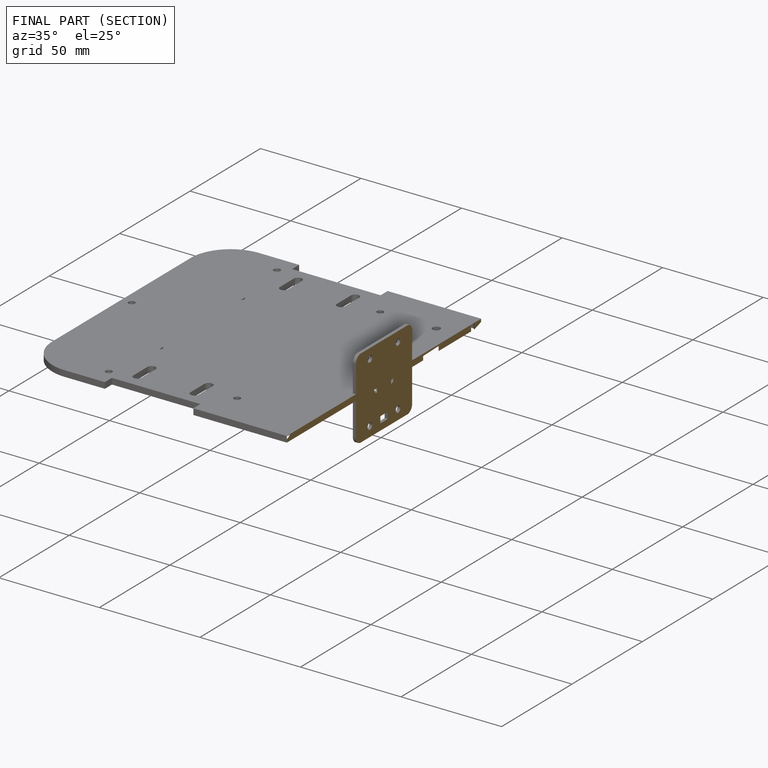
[diagram: finished part — half-section view (interior)]
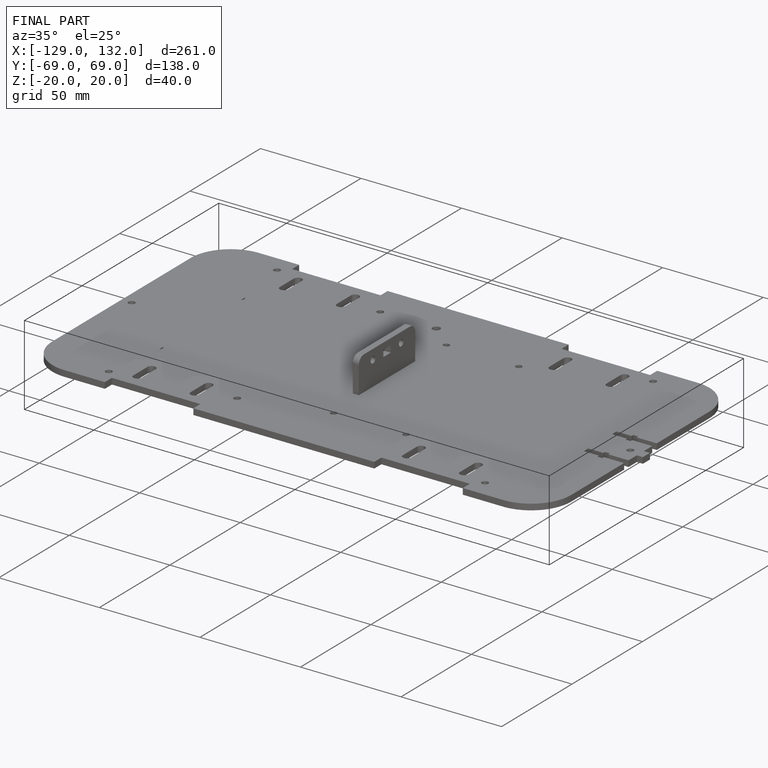
[diagram: finished part — iso view with bounding-box wireframe]
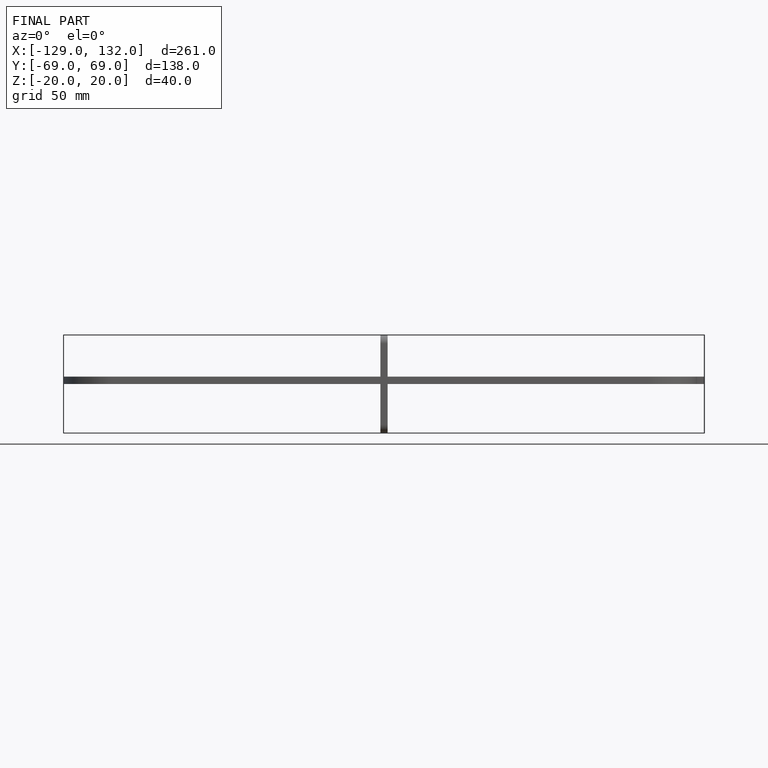
[diagram: finished part — front view with bounding-box wireframe]
